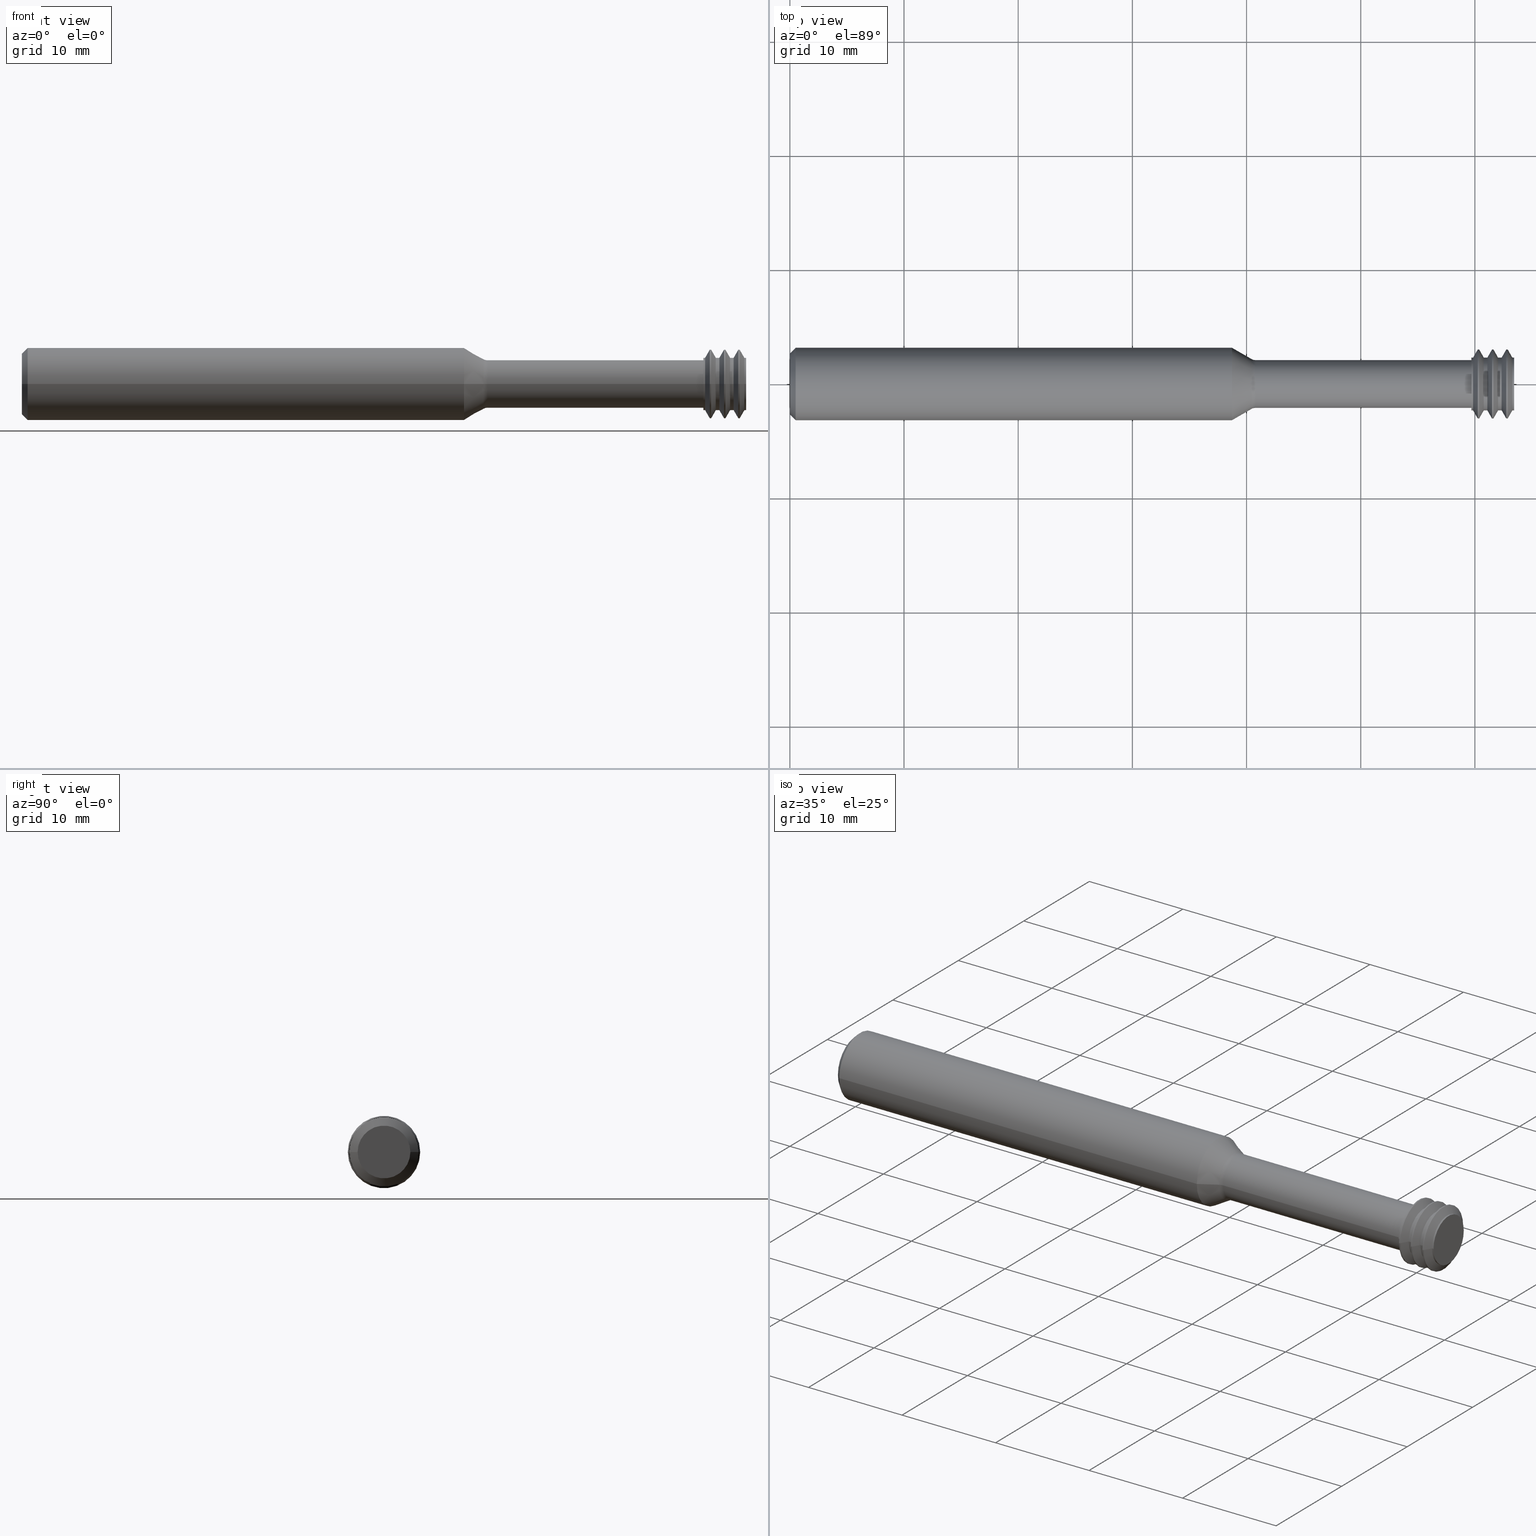
[diagram: canonical four-view strip — front | top / right | iso, engineering-drawing reading convention]
A machine part, canonical four-view strip (front | top / right | iso — engineering-drawing reading convention). The complete STEP part file that produces these views, byte-faithful:
ISO-10303-21;
HEADER;
FILE_DESCRIPTION (( 'STEP AP214' ),
    '1' );
FILE_NAME ('TMLR8-1-25MMEL.STEP',
    '2019-04-25T19:32:28',
    ( '' ),
    ( '' ),
    'SwSTEP 2.0',
    'SolidWorks 2018',
    '' );
FILE_SCHEMA (( 'AUTOMOTIVE_DESIGN' ));
ENDSEC;

DATA;
#1 = ORIENTED_EDGE ( 'NONE', *, *, #171, .T. ) ;
#2 = VECTOR ( 'NONE', #633, 39.37007874015748854 ) ;
#3 = PRESENTATION_STYLE_ASSIGNMENT (( #414 ) ) ;
#4 = VERTEX_POINT ( 'NONE', #1029 ) ;
#5 = CARTESIAN_POINT ( 'NONE',  ( 2.350000000000000089, -7.258347044323575049E-19, 0.0000000000000000000 ) ) ;
#6 = AXIS2_PLACEMENT_3D ( 'NONE', #350, #346, #345 ) ;
#7 = CARTESIAN_POINT ( 'NONE',  ( 2.475381500787402267, -0.1189999999999999669, 0.0000000000000000000 ) ) ;
#8 = DIRECTION ( 'NONE',  ( 0.0000000000000000000, -1.000000000000000000, 0.0000000000000000000 ) ) ;
#9 = AXIS2_PLACEMENT_3D ( 'NONE', #849, #838, #863 ) ;
#10 = DIRECTION ( 'NONE',  ( 0.0000000000000000000, -1.000000000000000000, 0.0000000000000000000 ) ) ;
#11 = DIRECTION ( 'NONE',  ( -1.000000000000000000, 2.239313081137374464E-19, -0.0000000000000000000 ) ) ;
#12 = ORIENTED_EDGE ( 'NONE', *, *, #741, .F. ) ;
#13 = EDGE_LOOP ( 'NONE', ( #370, #857, #12, #278 ) ) ;
#14 = VECTOR ( 'NONE', #234, 39.37007874015748143 ) ;
#15 = EDGE_CURVE ( 'NONE', #781, #4, #860, .T. ) ;
#16 = CARTESIAN_POINT ( 'NONE',  ( 2.442175201574803278, -7.464756178966507418E-19, 0.0000000000000000000 ) ) ;
#17 = STYLED_ITEM ( 'NONE', ( #703 ), #862 ) ;
#18 = VECTOR ( 'NONE', #832, 39.37007874015748854 ) ;
#19 = CARTESIAN_POINT ( 'NONE',  ( 1.592198729810778035, -5.561392747086332618E-19, 0.0000000000000000000 ) ) ;
#20 = EDGE_LOOP ( 'NONE', ( #705, #164, #238, #894 ) ) ;
#21 = EDGE_LOOP ( 'NONE', ( #878, #391, #558, #255 ) ) ;
#22 = VERTEX_POINT ( 'NONE', #26 ) ;
#23 = AXIS2_PLACEMENT_3D ( 'NONE', #834, #733, #756 ) ;
#24 = ORIENTED_EDGE ( 'NONE', *, *, #934, .T. ) ;
#25 = CARTESIAN_POINT ( 'NONE',  ( 1.604698729810777991, 0.0000000000000000000, 0.0000000000000000000 ) ) ;
#26 = CARTESIAN_POINT ( 'NONE',  ( 2.491387800000000485, 0.09093797018512160546, 1.113668941081666152E-17 ) ) ;
#27 = FACE_OUTER_BOUND ( 'NONE', #792, .T. ) ;
#28 = AXIS2_PLACEMENT_3D ( 'NONE', #54, #812, #596 ) ;
#29 = EDGE_CURVE ( 'NONE', #216, #781, #689, .T. ) ;
#30 = LINE ( 'NONE', #846, #575 ) ;
#31 = CIRCLE ( 'NONE', #157, 0.1189999999999999669 ) ;
#32 = DIRECTION ( 'NONE',  ( 0.0000000000000000000, -1.000000000000000000, 0.0000000000000000000 ) ) ;
#33 = ORIENTED_EDGE ( 'NONE', *, *, #670, .F. ) ;
#34 = ORIENTED_EDGE ( 'NONE', *, *, #961, .F. ) ;
#35 = EDGE_CURVE ( 'NONE', #539, #883, #833, .T. ) ;
#36 = ORIENTED_EDGE ( 'NONE', *, *, #299, .T. ) ;
#37 = TOROIDAL_SURFACE ( 'NONE', #577, 0.1075000000000000122, 0.02499999999999994241 ) ;
#38 = VECTOR ( 'NONE', #94, 39.37007874015748143 ) ;
#39 = PLANE ( 'NONE',  #264 ) ;
#40 = DIRECTION ( 'NONE',  ( 0.0000000000000000000, -1.000000000000000000, 0.0000000000000000000 ) ) ;
#41 = EDGE_CURVE ( 'NONE', #825, #909, #493, .T. ) ;
#42 = CARTESIAN_POINT ( 'NONE',  ( 2.547537800000000185, -7.258347044323575049E-19, 0.0000000000000000000 ) ) ;
#43 = AXIS2_PLACEMENT_3D ( 'NONE', #81, #11, #8 ) ;
#44 = DIRECTION ( 'NONE',  ( -1.000000000000000000, 0.0000000000000000000, -0.0000000000000000000 ) ) ;
#45 = DIRECTION ( 'NONE',  ( 0.4954586684324090440, 0.8686315144381903108, 0.0000000000000000000 ) ) ;
#46 = ORIENTED_EDGE ( 'NONE', *, *, #847, .F. ) ;
#47 = EDGE_CURVE ( 'NONE', #367, #910, #861, .T. ) ;
#48 = ORIENTED_EDGE ( 'NONE', *, *, #47, .F. ) ;
#49 = FACE_OUTER_BOUND ( 'NONE', #569, .T. ) ;
#50 = EDGE_CURVE ( 'NONE', #227, #685, #451, .T. ) ;
#51 = ORIENTED_EDGE ( 'NONE', *, *, #572, .F. ) ;
#52 = ORIENTED_EDGE ( 'NONE', *, *, #515, .F. ) ;
#53 = FACE_OUTER_BOUND ( 'NONE', #311, .T. ) ;
#54 = CARTESIAN_POINT ( 'NONE',  ( 0.0000000000000000000, 0.0000000000000000000, 0.0000000000000000000 ) ) ;
#55 = EDGE_CURVE ( 'NONE', #404, #216, #396, .T. ) ;
#56 = DIRECTION ( 'NONE',  ( -1.000000000000000000, 9.347444947714682107E-19, -0.0000000000000000000 ) ) ;
#57 = AXIS2_PLACEMENT_3D ( 'NONE', #510, #235, #319 ) ;
#58 = DIRECTION ( 'NONE',  ( 1.000000000000000000, -2.239313081137374464E-19, 0.0000000000000000000 ) ) ;
#59 = ORIENTED_EDGE ( 'NONE', *, *, #471, .F. ) ;
#60 =( LENGTH_UNIT ( ) NAMED_UNIT ( * ) SI_UNIT ( $, .METRE. ) );
#61 = CARTESIAN_POINT ( 'NONE',  ( 2.470481500787402140, 0.1189999999999999669, 0.0000000000000000000 ) ) ;
#62 = ORIENTED_EDGE ( 'NONE', *, *, #753, .T. ) ;
#63 = VERTEX_POINT ( 'NONE', #837 ) ;
#64 = ORIENTED_EDGE ( 'NONE', *, *, #130, .F. ) ;
#65 = ORIENTED_EDGE ( 'NONE', *, *, #286, .T. ) ;
#66 = EDGE_CURVE ( 'NONE', #883, #701, #305, .T. ) ;
#67 = CONICAL_SURFACE ( 'NONE', #209, 0.1189999999999999669, 1.052433538952578962 ) ;
#68 = AXIS2_PLACEMENT_3D ( 'NONE', #702, #58, #135 ) ;
#69 = CARTESIAN_POINT ( 'NONE',  ( 2.350000000000000089, 0.08250000000000004552, 1.010333609296566932E-17 ) ) ;
#70 = DIRECTION ( 'NONE',  ( -1.000000000000000000, 2.239313081137374464E-19, -0.0000000000000000000 ) ) ;
#71 = DIRECTION ( 'NONE',  ( -1.000000000000000000, 2.239313081137374464E-19, -0.0000000000000000000 ) ) ;
#72 = CARTESIAN_POINT ( 'NONE',  ( 1.592198729810778035, -5.561392747086332618E-19, 0.0000000000000000000 ) ) ;
#73 = DIRECTION ( 'NONE',  ( 0.0000000000000000000, -1.000000000000000000, 0.0000000000000000000 ) ) ;
#74 = ORIENTED_EDGE ( 'NONE', *, *, #1026, .T. ) ;
#75 = FACE_OUTER_BOUND ( 'NONE', #116, .T. ) ;
#76 = ORIENTED_EDGE ( 'NONE', *, *, #55, .T. ) ;
#77 = ORIENTED_EDGE ( 'NONE', *, *, #572, .T. ) ;
#78 = CARTESIAN_POINT ( 'NONE',  ( 2.442175201574803278, -7.464756178966507418E-19, 0.0000000000000000000 ) ) ;
#79 = CARTESIAN_POINT ( 'NONE',  ( 2.421268902362205377, 0.1189999999999999669, 0.0000000000000000000 ) ) ;
#80 = ADVANCED_FACE ( 'NONE', ( #152 ), #67, .T. ) ;
#81 = CARTESIAN_POINT ( 'NONE',  ( 1.524647648299458425, -5.410124726613057189E-19, 0.0000000000000000000 ) ) ;
#82 = DIRECTION ( 'NONE',  ( -1.000000000000000000, 2.239313081137374464E-19, -0.0000000000000000000 ) ) ;
#83 = EDGE_CURVE ( 'NONE', #532, #852, #84, .T. ) ;
#84 = CIRCLE ( 'NONE', #519, 0.1189999999999999669 ) ;
#85 = LINE ( 'NONE', #244, #260 ) ;
#86 = DIRECTION ( 'NONE',  ( 1.000000000000000000, -2.239313081137374464E-19, 0.0000000000000000000 ) ) ;
#87 = LINE ( 'NONE', #495, #256 ) ;
#88 = PRODUCT_DEFINITION_FORMATION_WITH_SPECIFIED_SOURCE ( 'ANY', '', #953, .NOT_KNOWN. ) ;
#89 = DIRECTION ( 'NONE',  ( 0.4954586684324090440, -0.8686315144381903108, 1.063766803795247741E-16 ) ) ;
#90 = TOROIDAL_SURFACE ( 'NONE', #271, 0.1075000000000000122, 0.02499999999999994241 ) ;
#91 = DIRECTION ( 'NONE',  ( -1.000000000000000000, 2.239313081137374464E-19, -0.0000000000000000000 ) ) ;
#92 = ORIENTED_EDGE ( 'NONE', *, *, #961, .T. ) ;
#93 = CARTESIAN_POINT ( 'NONE',  ( 2.392962603149606515, -7.354553763556201788E-19, 0.0000000000000000000 ) ) ;
#94 = DIRECTION ( 'NONE',  ( -1.000000000000000000, 2.239313081137374464E-19, -0.0000000000000000000 ) ) ;
#95 = ORIENTED_EDGE ( 'NONE', *, *, #413, .T. ) ;
#96 = DIRECTION ( 'NONE',  ( 0.0000000000000000000, -1.000000000000000000, 0.0000000000000000000 ) ) ;
#97 = DIRECTION ( 'NONE',  ( -1.000000000000000000, 2.239313081137374464E-19, -0.0000000000000000000 ) ) ;
#98 =( GEOMETRIC_REPRESENTATION_CONTEXT ( 3 ) GLOBAL_UNCERTAINTY_ASSIGNED_CONTEXT ( ( #326 ) ) GLOBAL_UNIT_ASSIGNED_CONTEXT ( ( #257, #158, #420 ) ) REPRESENTATION_CONTEXT ( 'NONE', 'WORKASPACE' ) );
#99 = AXIS2_PLACEMENT_3D ( 'NONE', #941, #468, #930 ) ;
#100 = VECTOR ( 'NONE', #608, 39.37007874015748854 ) ;
#101 = LINE ( 'NONE', #796, #652 ) ;
#102 = DIRECTION ( 'NONE',  ( -1.000000000000000000, 2.239313081137374464E-19, -0.0000000000000000000 ) ) ;
#103 = ORIENTED_EDGE ( 'NONE', *, *, #772, .F. ) ;
#104 = CARTESIAN_POINT ( 'NONE',  ( 2.491387800000000485, -7.574958594376810159E-19, 0.0000000000000000000 ) ) ;
#105 = VERTEX_POINT ( 'NONE', #688 ) ;
#106 = LINE ( 'NONE', #481, #2 ) ;
#107 = VECTOR ( 'NONE', #632, 39.37007874015748143 ) ;
#108 = DIRECTION ( 'NONE',  ( -1.000000000000000000, 9.347444947714682107E-19, -0.0000000000000000000 ) ) ;
#109 = CYLINDRICAL_SURFACE ( 'NONE', #482, 0.09093797018512160546 ) ;
#110 = DIRECTION ( 'NONE',  ( 1.000000000000000000, -2.239313081137374464E-19, 0.0000000000000000000 ) ) ;
#111 = VECTOR ( 'NONE', #89, 39.37007874015748854 ) ;
#112 = CARTESIAN_POINT ( 'NONE',  ( 2.547537800000000185, -0.1189999999999999808, 0.0000000000000000000 ) ) ;
#113 = CARTESIAN_POINT ( 'NONE',  ( 2.350000000000000089, -7.258347044323575049E-19, 0.0000000000000000000 ) ) ;
#114 = VERTEX_POINT ( 'NONE', #960 ) ;
#115 = LINE ( 'NONE', #931, #429 ) ;
#116 = EDGE_LOOP ( 'NONE', ( #76, #655, #128, #611 ) ) ;
#117 = ORIENTED_EDGE ( 'NONE', *, *, #303, .T. ) ;
#118 = LINE ( 'NONE', #923, #979 ) ;
#119 = CARTESIAN_POINT ( 'NONE',  ( 2.405262603149606715, -7.382097314454192249E-19, 0.0000000000000000000 ) ) ;
#120 = DIRECTION ( 'NONE',  ( 0.0000000000000000000, -1.000000000000000000, 0.0000000000000000000 ) ) ;
#121 = EDGE_CURVE ( 'NONE', #425, #227, #85, .T. ) ;
#122 = LINE ( 'NONE', #778, #691 ) ;
#123 = DIRECTION ( 'NONE',  ( -1.000000000000000000, 2.239313081137374464E-19, -0.0000000000000000000 ) ) ;
#124 = CARTESIAN_POINT ( 'NONE',  ( -2.347919765572537244E-20, -0.1048500000000000126, 1.406506848820735372E-17 ) ) ;
#125 = ORIENTED_EDGE ( 'NONE', *, *, #772, .T. ) ;
#126 = ORIENTED_EDGE ( 'NONE', *, *, #605, .F. ) ;
#127 = CARTESIAN_POINT ( 'NONE',  ( 2.356050004724409952, -7.271894899043888545E-19, 0.0000000000000000000 ) ) ;
#128 = ORIENTED_EDGE ( 'NONE', *, *, #520, .F. ) ;
#129 = FACE_OUTER_BOUND ( 'NONE', #487, .T. ) ;
#130 = EDGE_CURVE ( 'NONE', #293, #227, #122, .T. ) ;
#131 = DIRECTION ( 'NONE',  ( -0.4954586684323962209, -0.8686315144381975273, 0.0000000000000000000 ) ) ;
#132 = ORIENTED_EDGE ( 'NONE', *, *, #723, .T. ) ;
#133 = ORIENTED_EDGE ( 'NONE', *, *, #297, .T. ) ;
#134 = ORIENTED_EDGE ( 'NONE', *, *, #803, .T. ) ;
#135 = DIRECTION ( 'NONE',  ( 2.239313081137374464E-19, 1.000000000000000000, 0.0000000000000000000 ) ) ;
#136 = DIRECTION ( 'NONE',  ( -1.000000000000000000, 2.239313081137374464E-19, -0.0000000000000000000 ) ) ;
#137 = DIRECTION ( 'NONE',  ( 0.0000000000000000000, -1.000000000000000000, 0.0000000000000000000 ) ) ;
#138 = DIRECTION ( 'NONE',  ( 0.0000000000000000000, 1.000000000000000000, 0.0000000000000000000 ) ) ;
#139 = AXIS2_PLACEMENT_3D ( 'NONE', #292, #274, #40 ) ;
#140 = CARTESIAN_POINT ( 'NONE',  ( 2.392962603149606515, -0.09093797018512160546, 0.0000000000000000000 ) ) ;
#141 = DIRECTION ( 'NONE',  ( -1.000000000000000000, 2.239313081137374464E-19, -0.0000000000000000000 ) ) ;
#142 = CARTESIAN_POINT ( 'NONE',  ( 2.372056303937008614, -0.1189999999999999669, 1.457329690985349863E-17 ) ) ;
#143 = CARTESIAN_POINT ( 'NONE',  ( 2.421268902362205377, -7.417940429661563374E-19, 0.0000000000000000000 ) ) ;
#144 = ORIENTED_EDGE ( 'NONE', *, *, #995, .F. ) ;
#145 = CARTESIAN_POINT ( 'NONE',  ( 1.604698729810777991, 0.1075000000000000122, 1.316495309083404864E-17 ) ) ;
#146 = VERTEX_POINT ( 'NONE', #766 ) ;
#147 = DIRECTION ( 'NONE',  ( 0.0000000000000000000, 1.000000000000000000, 0.0000000000000000000 ) ) ;
#148 = DIRECTION ( 'NONE',  ( 0.0000000000000000000, -1.000000000000000000, 0.0000000000000000000 ) ) ;
#149 = ORIENTED_EDGE ( 'NONE', *, *, #471, .T. ) ;
#150 = CARTESIAN_POINT ( 'NONE',  ( 1.604698729810777991, -5.589384160600548992E-19, 0.0000000000000000000 ) ) ;
#151 = CARTESIAN_POINT ( 'NONE',  ( 2.470481500787402140, -7.528142845071868041E-19, 0.0000000000000000000 ) ) ;
#152 = FACE_OUTER_BOUND ( 'NONE', #501, .T. ) ;
#153 = APPLICATION_PROTOCOL_DEFINITION ( 'draft international standard', 'automotive_design', 1998, #446 ) ;
#154 = EDGE_CURVE ( 'NONE', #539, #457, #534, .T. ) ;
#155 = DIRECTION ( 'NONE',  ( -1.000000000000000000, 2.239313081137374464E-19, -0.0000000000000000000 ) ) ;
#156 = DIRECTION ( 'NONE',  ( -1.000000000000000000, 2.239313081137374464E-19, -0.0000000000000000000 ) ) ;
#157 = AXIS2_PLACEMENT_3D ( 'NONE', #151, #155, #576 ) ;
#158 =( NAMED_UNIT ( * ) PLANE_ANGLE_UNIT ( ) SI_UNIT ( $, .RADIAN. ) );
#159 = CARTESIAN_POINT ( 'NONE',  ( 2.475381500787402267, 0.1189999999999999669, 1.457329690985349555E-17 ) ) ;
#160 = DIRECTION ( 'NONE',  ( 0.0000000000000000000, -1.000000000000000000, 0.0000000000000000000 ) ) ;
#161 = ORIENTED_EDGE ( 'NONE', *, *, #361, .F. ) ;
#162 = ORIENTED_EDGE ( 'NONE', *, *, #777, .T. ) ;
#163 = DIRECTION ( 'NONE',  ( -1.000000000000000000, 2.239313081137374464E-19, -0.0000000000000000000 ) ) ;
#164 = ORIENTED_EDGE ( 'NONE', *, *, #605, .T. ) ;
#165 = CARTESIAN_POINT ( 'NONE',  ( 2.442175201574803278, -7.464756178966507418E-19, 0.0000000000000000000 ) ) ;
#166 = CIRCLE ( 'NONE', #1030, 0.1189999999999999669 ) ;
#167 = FACE_OUTER_BOUND ( 'NONE', #13, .T. ) ;
#168 = DIRECTION ( 'NONE',  ( 0.0000000000000000000, -1.000000000000000000, 0.0000000000000000000 ) ) ;
#169 = CARTESIAN_POINT ( 'NONE',  ( 0.02000000000000005940, -2.040747565273492847E-19, 0.0000000000000000000 ) ) ;
#170 = FACE_OUTER_BOUND ( 'NONE', #324, .T. ) ;
#171 = EDGE_CURVE ( 'NONE', #825, #663, #604, .T. ) ;
#172 = CYLINDRICAL_SURFACE ( 'NONE', #502, 0.09093797018512160546 ) ;
#173 = CIRCLE ( 'NONE', #177, 0.09093797018512160546 ) ;
#174 = ORIENTED_EDGE ( 'NONE', *, *, #977, .F. ) ;
#175 = ORIENTED_EDGE ( 'NONE', *, *, #362, .T. ) ;
#176 = ORIENTED_EDGE ( 'NONE', *, *, #990, .F. ) ;
#177 = AXIS2_PLACEMENT_3D ( 'NONE', #78, #411, #498 ) ;
#178 = EDGE_CURVE ( 'NONE', #951, #105, #573, .T. ) ;
#179 = CARTESIAN_POINT ( 'NONE',  ( 2.421268902362205377, -7.417940429661563374E-19, 0.0000000000000000000 ) ) ;
#180 = PRESENTATION_LAYER_ASSIGNMENT (  '', '', ( #447 ) ) ;
#181 = CYLINDRICAL_SURFACE ( 'NONE', #295, 0.1189999999999999808 ) ;
#182 = DIRECTION ( 'NONE',  ( -1.000000000000000000, 2.239313081137374464E-19, -0.0000000000000000000 ) ) ;
#183 = DIRECTION ( 'NONE',  ( 0.0000000000000000000, -1.000000000000000000, 0.0000000000000000000 ) ) ;
#184 = FACE_OUTER_BOUND ( 'NONE', #720, .T. ) ;
#185 = ORIENTED_EDGE ( 'NONE', *, *, #338, .F. ) ;
#186 = DIRECTION ( 'NONE',  ( 1.000000000000000000, -2.239313081137374464E-19, 0.0000000000000000000 ) ) ;
#187 = ADVANCED_FACE ( 'NONE', ( #167 ), #466, .T. ) ;
#188 = DIRECTION ( 'NONE',  ( 0.0000000000000000000, 1.000000000000000000, 0.0000000000000000000 ) ) ;
#189 = DIRECTION ( 'NONE',  ( -1.000000000000000000, 2.239313081137374464E-19, -0.0000000000000000000 ) ) ;
#190 = CONICAL_SURFACE ( 'NONE', #23, 0.09093797018512160546, 1.052433538952593617 ) ;
#191 = DIRECTION ( 'NONE',  ( -1.000000000000000000, 9.347444947714682107E-19, -0.0000000000000000000 ) ) ;
#192 = CARTESIAN_POINT ( 'NONE',  ( 2.350000000000000089, -7.258347044323575049E-19, 0.0000000000000000000 ) ) ;
#193 = ADVANCED_FACE ( 'NONE', ( #1022 ), #1017, .T. ) ;
#194 = AXIS2_PLACEMENT_3D ( 'NONE', #797, #794, #815 ) ;
#195 = CARTESIAN_POINT ( 'NONE',  ( 2.470481500787402140, -7.528142845071868041E-19, 0.0000000000000000000 ) ) ;
#196 = ADVANCED_FACE ( 'NONE', ( #53 ), #39, .F. ) ;
#197 = EDGE_CURVE ( 'NONE', #63, #430, #963, .T. ) ;
#198 = ADVANCED_FACE ( 'NONE', ( #823 ), #312, .T. ) ;
#199 = ORIENTED_EDGE ( 'NONE', *, *, #513, .F. ) ;
#200 = DIRECTION ( 'NONE',  ( -1.000000000000000000, 2.239313081137374464E-19, -0.0000000000000000000 ) ) ;
#201 = LINE ( 'NONE', #788, #587 ) ;
#202 = ORIENTED_EDGE ( 'NONE', *, *, #900, .T. ) ;
#203 = ADVANCED_FACE ( 'NONE', ( #625 ), #268, .F. ) ;
#204 = CARTESIAN_POINT ( 'NONE',  ( 2.547537800000000185, -7.258347044323575049E-19, 0.0000000000000000000 ) ) ;
#205 = ADVANCED_FACE ( 'NONE', ( #907 ), #873, .T. ) ;
#206 = DIRECTION ( 'NONE',  ( 0.0000000000000000000, -1.000000000000000000, 0.0000000000000000000 ) ) ;
#207 = ADVANCED_FACE ( 'NONE', ( #748 ), #997, .T. ) ;
#208 = PRODUCT_DEFINITION_SHAPE ( 'NONE', 'NONE',  #582 ) ;
#209 = AXIS2_PLACEMENT_3D ( 'NONE', #259, #556, #905 ) ;
#210 = CARTESIAN_POINT ( 'NONE',  ( 2.426168902362205504, 0.1189999999999999669, 1.457329690985349863E-17 ) ) ;
#211 = DIRECTION ( 'NONE',  ( -2.239313081137374464E-19, -1.000000000000000000, 0.0000000000000000000 ) ) ;
#212 = CIRCLE ( 'NONE', #516, 0.09093797018512160546 ) ;
#213 = DIRECTION ( 'NONE',  ( -1.000000000000000000, 2.239313081137374464E-19, -0.0000000000000000000 ) ) ;
#214 = AXIS2_PLACEMENT_3D ( 'NONE', #358, #356, #470 ) ;
#215 = ADVANCED_FACE ( 'NONE', ( #75 ), #592, .T. ) ;
#216 = VERTEX_POINT ( 'NONE', #378 ) ;
#217 = DIRECTION ( 'NONE',  ( -1.000000000000000000, 2.239313081137374464E-19, -0.0000000000000000000 ) ) ;
#218 = ADVANCED_FACE ( 'NONE', ( #388 ), #181, .T. ) ;
#219 = CARTESIAN_POINT ( 'NONE',  ( 0.0000000000000000000, -1.995961303650745011E-19, 0.0000000000000000000 ) ) ;
#220 = ORIENTED_EDGE ( 'NONE', *, *, #892, .T. ) ;
#221 = ORIENTED_EDGE ( 'NONE', *, *, #369, .T. ) ;
#222 = SURFACE_STYLE_FILL_AREA ( #327 ) ;
#223 = CARTESIAN_POINT ( 'NONE',  ( 2.251574803149606119, -7.037942213502966678E-19, 0.0000000000000000000 ) ) ;
#224 = EDGE_LOOP ( 'NONE', ( #282, #315, #65, #557 ) ) ;
#225 = ADVANCED_FACE ( 'NONE', ( #1002 ), #904, .T. ) ;
#226 = CARTESIAN_POINT ( 'NONE',  ( 2.350000000000000089, 0.09093797018512160546, 1.113668941081666152E-17 ) ) ;
#227 = VERTEX_POINT ( 'NONE', #424 ) ;
#228 = ADVANCED_FACE ( 'NONE', ( #875 ), #938, .T. ) ;
#229 = CARTESIAN_POINT ( 'NONE',  ( 2.350000000000000089, 0.08250000000000004552, 1.010333609296566932E-17 ) ) ;
#230 = DIMENSIONAL_EXPONENTS ( 1.000000000000000000, 0.0000000000000000000, 0.0000000000000000000, 0.0000000000000000000, 0.0000000000000000000, 0.0000000000000000000, 0.0000000000000000000 ) ;
#231 = VECTOR ( 'NONE', #602, 39.37007874015748143 ) ;
#232 = FACE_OUTER_BOUND ( 'NONE', #442, .T. ) ;
#233 =( GEOMETRIC_REPRESENTATION_CONTEXT ( 3 ) GLOBAL_UNCERTAINTY_ASSIGNED_CONTEXT ( ( #363 ) ) GLOBAL_UNIT_ASSIGNED_CONTEXT ( ( #612, #615, #607 ) ) REPRESENTATION_CONTEXT ( 'NONE', 'WORKASPACE' ) );
#234 = DIRECTION ( 'NONE',  ( -1.000000000000000000, 2.239313081137374464E-19, -0.0000000000000000000 ) ) ;
#235 = DIRECTION ( 'NONE',  ( 1.000000000000000000, -2.239313081137374464E-19, 0.0000000000000000000 ) ) ;
#236 = AXIS2_PLACEMENT_3D ( 'NONE', #330, #359, #709 ) ;
#237 = LINE ( 'NONE', #229, #14 ) ;
#238 = ORIENTED_EDGE ( 'NONE', *, *, #995, .T. ) ;
#239 = EDGE_CURVE ( 'NONE', #383, #22, #522, .T. ) ;
#240 = ORIENTED_EDGE ( 'NONE', *, *, #900, .F. ) ;
#241 = ORIENTED_EDGE ( 'NONE', *, *, #47, .T. ) ;
#242 = AXIS2_PLACEMENT_3D ( 'NONE', #658, #635, #628 ) ;
#243 = FACE_OUTER_BOUND ( 'NONE', #298, .T. ) ;
#244 = CARTESIAN_POINT ( 'NONE',  ( 0.02000000000000005940, 0.1248500000000000026, 0.0000000000000000000 ) ) ;
#245 = AXIS2_PLACEMENT_3D ( 'NONE', #104, #102, #96 ) ;
#246 = AXIS2_PLACEMENT_3D ( 'NONE', #195, #86, #147 ) ;
#247 = ADVANCED_FACE ( 'NONE', ( #914 ), #251, .T. ) ;
#248 = EDGE_CURVE ( 'NONE', #430, #63, #321, .T. ) ;
#249 = CONICAL_SURFACE ( 'NONE', #9, 0.1189999999999999669, 1.052433538952578962 ) ;
#250 = EDGE_CURVE ( 'NONE', #457, #701, #212, .T. ) ;
#251 = CYLINDRICAL_SURFACE ( 'NONE', #585, 0.1248500000000000026 ) ;
#252 = CARTESIAN_POINT ( 'NONE',  ( 2.405262603149606715, -0.09093797018512160546, 1.285499316033507930E-17 ) ) ;
#253 = ADVANCED_FACE ( 'NONE', ( #728 ), #90, .F. ) ;
#254 = ORIENTED_EDGE ( 'NONE', *, *, #893, .F. ) ;
#255 = ORIENTED_EDGE ( 'NONE', *, *, #801, .F. ) ;
#256 = VECTOR ( 'NONE', #694, 39.37007874015748143 ) ;
#257 =( CONVERSION_BASED_UNIT ( 'INCH', #283 ) LENGTH_UNIT ( ) NAMED_UNIT ( #730 ) );
#258 = ADVANCED_FACE ( 'NONE', ( #277 ), #754, .T. ) ;
#259 = CARTESIAN_POINT ( 'NONE',  ( 2.470481500787402140, -7.528142845071868041E-19, 0.0000000000000000000 ) ) ;
#260 = VECTOR ( 'NONE', #492, 39.37007874015748854 ) ;
#261 = FACE_BOUND ( 'NONE', #1018, .T. ) ;
#262 = ADVANCED_FACE ( 'NONE', ( #876 ), #1031, .T. ) ;
#263 = CIRCLE ( 'NONE', #619, 0.1189999999999999669 ) ;
#264 = AXIS2_PLACEMENT_3D ( 'NONE', #342, #44, #461 ) ;
#265 = EDGE_CURVE ( 'NONE', #701, #419, #973, .T. ) ;
#266 = ADVANCED_FACE ( 'NONE', ( #371 ), #249, .T. ) ;
#267 = ORIENTED_EDGE ( 'NONE', *, *, #847, .T. ) ;
#268 = PLANE ( 'NONE',  #68 ) ;
#269 = EDGE_LOOP ( 'NONE', ( #524, #328, #581, #526 ) ) ;
#270 = ORIENTED_EDGE ( 'NONE', *, *, #803, .F. ) ;
#271 = AXIS2_PLACEMENT_3D ( 'NONE', #483, #1000, #950 ) ;
#272 = DIRECTION ( 'NONE',  ( 0.0000000000000000000, -1.000000000000000000, 0.0000000000000000000 ) ) ;
#273 = ADVANCED_FACE ( 'NONE', ( #798 ), #437, .T. ) ;
#274 = DIRECTION ( 'NONE',  ( -1.000000000000000000, 2.239313081137374464E-19, -0.0000000000000000000 ) ) ;
#275 = AXIS2_PLACEMENT_3D ( 'NONE', #16, #1010, #998 ) ;
#276 = ADVANCED_FACE ( 'NONE', ( #49 ), #109, .T. ) ;
#277 = FACE_OUTER_BOUND ( 'NONE', #269, .T. ) ;
#278 = ORIENTED_EDGE ( 'NONE', *, *, #41, .F. ) ;
#279 = ADVANCED_FACE ( 'NONE', ( #351 ), #752, .T. ) ;
#280 = ORIENTED_EDGE ( 'NONE', *, *, #955, .T. ) ;
#281 = CIRCLE ( 'NONE', #824, 0.09093797018512160546 ) ;
#282 = ORIENTED_EDGE ( 'NONE', *, *, #459, .F. ) ;
#283 = LENGTH_MEASURE_WITH_UNIT ( LENGTH_MEASURE( 0.02539999999999999897 ), #60 );
#284 = AXIS2_PLACEMENT_3D ( 'NONE', #787, #497, #393 ) ;
#285 = VERTEX_POINT ( 'NONE', #782 ) ;
#286 = EDGE_CURVE ( 'NONE', #852, #63, #201, .T. ) ;
#287 = ADVANCED_FACE ( 'NONE', ( #27 ), #716, .T. ) ;
#288 = EDGE_CURVE ( 'NONE', #285, #891, #335, .T. ) ;
#289 = FACE_OUTER_BOUND ( 'NONE', #636, .T. ) ;
#290 = ADVANCED_FACE ( 'NONE', ( #450 ), #929, .T. ) ;
#291 = AXIS2_PLACEMENT_3D ( 'NONE', #119, #136, #168 ) ;
#292 = CARTESIAN_POINT ( 'NONE',  ( 1.592198729810778035, -5.561392747086332618E-19, 0.0000000000000000000 ) ) ;
#293 = VERTEX_POINT ( 'NONE', #546 ) ;
#294 = CIRCLE ( 'NONE', #310, 0.09093797018512160546 ) ;
#295 = AXIS2_PLACEMENT_3D ( 'NONE', #550, #108, #272 ) ;
#296 = ORIENTED_EDGE ( 'NONE', *, *, #549, .F. ) ;
#297 = EDGE_CURVE ( 'NONE', #114, #146, #263, .T. ) ;
#298 = EDGE_LOOP ( 'NONE', ( #126, #389, #221, #133 ) ) ;
#299 = EDGE_CURVE ( 'NONE', #105, #320, #606, .T. ) ;
#300 = SURFACE_SIDE_STYLE ('',( #222 ) ) ;
#301 = CARTESIAN_POINT ( 'NONE',  ( 1.592198729810778035, -0.08584936490538914999, 0.0000000000000000000 ) ) ;
#302 = DIRECTION ( 'NONE',  ( -0.8660254037844380415, -0.5000000000000009992, 0.0000000000000000000 ) ) ;
#303 = EDGE_CURVE ( 'NONE', #601, #685, #903, .T. ) ;
#304 = DIRECTION ( 'NONE',  ( 0.0000000000000000000, -1.000000000000000000, 0.0000000000000000000 ) ) ;
#305 = LINE ( 'NONE', #617, #231 ) ;
#306 = DIRECTION ( 'NONE',  ( -1.000000000000000000, 2.239313081137374464E-19, -0.0000000000000000000 ) ) ;
#307 = CIRCLE ( 'NONE', #291, 0.09093797018512160546 ) ;
#308 = AXIS2_PLACEMENT_3D ( 'NONE', #538, #618, #621 ) ;
#309 = CARTESIAN_POINT ( 'NONE',  ( 2.426168902362205504, -7.428913063759137256E-19, 0.0000000000000000000 ) ) ;
#310 = AXIS2_PLACEMENT_3D ( 'NONE', #192, #189, #188 ) ;
#311 = EDGE_LOOP ( 'NONE', ( #347, #325 ) ) ;
#312 = CONICAL_SURFACE ( 'NONE', #840, 0.1189999999999999669, 1.052433538952578962 ) ;
#313 = EDGE_LOOP ( 'NONE', ( #240, #431, #525, #460 ) ) ;
#314 = UNCERTAINTY_MEASURE_WITH_UNIT (LENGTH_MEASURE( 1.000000000000000082E-05 ), #770, 'distance_accuracy_value', 'NONE');
#315 = ORIENTED_EDGE ( 'NONE', *, *, #83, .T. ) ;
#316 = EDGE_CURVE ( 'NONE', #285, #383, #87, .T. ) ;
#317 = VECTOR ( 'NONE', #712, 39.37007874015748143 ) ;
#318 = DIMENSIONAL_EXPONENTS ( 1.000000000000000000, 0.0000000000000000000, 0.0000000000000000000, 0.0000000000000000000, 0.0000000000000000000, 0.0000000000000000000, 0.0000000000000000000 ) ;
#319 = DIRECTION ( 'NONE',  ( 0.0000000000000000000, 1.000000000000000000, 0.0000000000000000000 ) ) ;
#320 = VERTEX_POINT ( 'NONE', #785 ) ;
#321 = CIRCLE ( 'NONE', #630, 0.1189999999999999669 ) ;
#322 = PRESENTATION_LAYER_ASSIGNMENT (  '', '', ( #17 ) ) ;
#323 = ORIENTED_EDGE ( 'NONE', *, *, #286, .F. ) ;
#324 = EDGE_LOOP ( 'NONE', ( #866, #906, #936, #679 ) ) ;
#325 = ORIENTED_EDGE ( 'NONE', *, *, #402, .T. ) ;
#326 = UNCERTAINTY_MEASURE_WITH_UNIT (LENGTH_MEASURE( 1.000000000000000082E-05 ), #257, 'distance_accuracy_value', 'NONE');
#327 = FILL_AREA_STYLE ('',( #418 ) ) ;
#328 = ORIENTED_EDGE ( 'NONE', *, *, #808, .T. ) ;
#329 = DIRECTION ( 'NONE',  ( -1.000000000000000000, 9.347444947714682107E-19, -0.0000000000000000000 ) ) ;
#330 = CARTESIAN_POINT ( 'NONE',  ( 2.202362204724409800, -6.927739798092663937E-19, 0.0000000000000000000 ) ) ;
#331 = DIRECTION ( 'NONE',  ( 2.239313081137374464E-19, 1.000000000000000000, 0.0000000000000000000 ) ) ;
#332 = FACE_OUTER_BOUND ( 'NONE', #740, .T. ) ;
#333 = PRODUCT_RELATED_PRODUCT_CATEGORY ( 'part', '', ( #953 ) ) ;
#334 = CIRCLE ( 'NONE', #478, 0.09093797018512160546 ) ;
#335 = CIRCLE ( 'NONE', #817, 0.09093797018512160546 ) ;
#336 = EDGE_LOOP ( 'NONE', ( #822, #651, #898, #845 ) ) ;
#337 = ORIENTED_EDGE ( 'NONE', *, *, #777, .F. ) ;
#338 = EDGE_CURVE ( 'NONE', #910, #909, #464, .T. ) ;
#339 = CYLINDRICAL_SURFACE ( 'NONE', #284, 0.1189999999999999808 ) ;
#340 = CARTESIAN_POINT ( 'NONE',  ( 2.350000000000000089, -5.262385740672830520E-19, 0.0000000000000000000 ) ) ;
#341 = AXIS2_PLACEMENT_3D ( 'NONE', #407, #400, #397 ) ;
#342 = CARTESIAN_POINT ( 'NONE',  ( 2.497537800000000363, 0.2500000000000000000, -0.2999999999999999889 ) ) ;
#343 = EDGE_CURVE ( 'NONE', #419, #707, #511, .T. ) ;
#344 = AXIS2_PLACEMENT_3D ( 'NONE', #145, #537, #512 ) ;
#345 = DIRECTION ( 'NONE',  ( 0.0000000000000000000, 1.000000000000000000, 0.0000000000000000000 ) ) ;
#346 = DIRECTION ( 'NONE',  ( 1.000000000000000000, -2.239313081137374464E-19, 0.0000000000000000000 ) ) ;
#347 = ORIENTED_EDGE ( 'NONE', *, *, #288, .T. ) ;
#348 = ADVANCED_FACE ( 'NONE', ( #896 ), #764, .T. ) ;
#349 = VERTEX_POINT ( 'NONE', #528 ) ;
#350 = CARTESIAN_POINT ( 'NONE',  ( 2.350000000000000089, -7.258347044323575049E-19, 0.0000000000000000000 ) ) ;
#351 = FACE_OUTER_BOUND ( 'NONE', #839, .T. ) ;
#352 = CARTESIAN_POINT ( 'NONE',  ( 2.392962603149606515, -0.09093797018512160546, 0.0000000000000000000 ) ) ;
#353 = LINE ( 'NONE', #112, #614 ) ;
#354 = LENGTH_MEASURE_WITH_UNIT ( LENGTH_MEASURE( 0.02539999999999999897 ), #765 );
#355 = CARTESIAN_POINT ( 'NONE',  ( 1.604698729810777991, -5.589384160600548992E-19, 0.0000000000000000000 ) ) ;
#356 = DIRECTION ( 'NONE',  ( -1.000000000000000000, 2.239313081137374464E-19, -0.0000000000000000000 ) ) ;
#357 = VECTOR ( 'NONE', #943, 39.37007874015748143 ) ;
#358 = CARTESIAN_POINT ( 'NONE',  ( 2.376956303937008741, -7.318710648348832589E-19, 0.0000000000000000000 ) ) ;
#359 = DIRECTION ( 'NONE',  ( -1.000000000000000000, 2.239313081137374464E-19, -0.0000000000000000000 ) ) ;
#360 = DIRECTION ( 'NONE',  ( -1.000000000000000000, 9.347444947714682107E-19, -0.0000000000000000000 ) ) ;
#361 = EDGE_CURVE ( 'NONE', #951, #775, #850, .T. ) ;
#362 = EDGE_CURVE ( 'NONE', #293, #426, #591, .T. ) ;
#363 = UNCERTAINTY_MEASURE_WITH_UNIT (LENGTH_MEASURE( 1.000000000000000082E-05 ), #612, 'distance_accuracy_value', 'NONE');
#364 = LINE ( 'NONE', #462, #887 ) ;
#365 = CARTESIAN_POINT ( 'NONE',  ( 0.02000000000000005940, -2.040747565273492847E-19, 0.0000000000000000000 ) ) ;
#366 = AXIS2_PLACEMENT_3D ( 'NONE', #365, #415, #500 ) ;
#367 = VERTEX_POINT ( 'NONE', #530 ) ;
#368 = EDGE_LOOP ( 'NONE', ( #474, #746, #555, #586 ) ) ;
#369 = EDGE_CURVE ( 'NONE', #216, #114, #364, .T. ) ;
#370 = ORIENTED_EDGE ( 'NONE', *, *, #438, .F. ) ;
#371 = FACE_OUTER_BOUND ( 'NONE', #20, .T. ) ;
#372 = CIRCLE ( 'NONE', #571, 0.08250000000000007327 ) ;
#373 = CARTESIAN_POINT ( 'NONE',  ( 2.547537800000000185, 0.1189999999999999808, 1.457329690985349863E-17 ) ) ;
#374 = FACE_OUTER_BOUND ( 'NONE', #509, .T. ) ;
#375 = DIRECTION ( 'NONE',  ( -1.000000000000000000, 2.239313081137374464E-19, -0.0000000000000000000 ) ) ;
#376 = AXIS2_PLACEMENT_3D ( 'NONE', #620, #653, #747 ) ;
#377 = CARTESIAN_POINT ( 'NONE',  ( 2.421268902362205377, 0.1189999999999999669, 1.457329690985349863E-17 ) ) ;
#378 = CARTESIAN_POINT ( 'NONE',  ( 2.356050004724409952, 0.09093797018512160546, 1.113668941081666152E-17 ) ) ;
#379 = FACE_OUTER_BOUND ( 'NONE', #499, .T. ) ;
#380 = CARTESIAN_POINT ( 'NONE',  ( 2.376956303937008741, 0.1189999999999999669, 1.457329690985349555E-17 ) ) ;
#381 = ORIENTED_EDGE ( 'NONE', *, *, #893, .T. ) ;
#382 = EDGE_LOOP ( 'NONE', ( #855, #473, #978, #804 ) ) ;
#383 = VERTEX_POINT ( 'NONE', #423 ) ;
#384 = DIRECTION ( 'NONE',  ( -1.000000000000000000, 2.239313081137374464E-19, -0.0000000000000000000 ) ) ;
#385 = CARTESIAN_POINT ( 'NONE',  ( 2.376956303937008741, -0.1189999999999999669, 0.0000000000000000000 ) ) ;
#386 = DIRECTION ( 'NONE',  ( -1.000000000000000000, 2.239313081137374464E-19, -0.0000000000000000000 ) ) ;
#387 = DIRECTION ( 'NONE',  ( -1.000000000000000000, 9.347444947714682107E-19, -0.0000000000000000000 ) ) ;
#388 = FACE_OUTER_BOUND ( 'NONE', #224, .T. ) ;
#389 = ORIENTED_EDGE ( 'NONE', *, *, #713, .F. ) ;
#390 = ORIENTED_EDGE ( 'NONE', *, *, #197, .T. ) ;
#391 = ORIENTED_EDGE ( 'NONE', *, *, #265, .T. ) ;
#392 = CARTESIAN_POINT ( 'NONE',  ( 2.491387800000000485, -7.574958594376810159E-19, 0.0000000000000000000 ) ) ;
#393 = DIRECTION ( 'NONE',  ( 0.0000000000000000000, -1.000000000000000000, 0.0000000000000000000 ) ) ;
#394 = CYLINDRICAL_SURFACE ( 'NONE', #399, 0.09093797018512160546 ) ;
#395 = AXIS2_PLACEMENT_3D ( 'NONE', #204, #678, #912 ) ;
#396 = CIRCLE ( 'NONE', #242, 0.09093797018512160546 ) ;
#397 = DIRECTION ( 'NONE',  ( 0.0000000000000000000, 0.0000000000000000000, 1.000000000000000000 ) ) ;
#398 = AXIS2_PLACEMENT_3D ( 'NONE', #454, #449, #448 ) ;
#399 = AXIS2_PLACEMENT_3D ( 'NONE', #401, #384, #634 ) ;
#400 = DIRECTION ( 'NONE',  ( 1.000000000000000000, 0.0000000000000000000, 0.0000000000000000000 ) ) ;
#401 = CARTESIAN_POINT ( 'NONE',  ( 2.300787401574803326, -7.148144628913271345E-19, 0.0000000000000000000 ) ) ;
#402 = EDGE_CURVE ( 'NONE', #891, #285, #518, .T. ) ;
#403 = DIRECTION ( 'NONE',  ( 0.0000000000000000000, -1.000000000000000000, 0.0000000000000000000 ) ) ;
#404 = VERTEX_POINT ( 'NONE', #422 ) ;
#405 = EDGE_CURVE ( 'NONE', #707, #146, #480, .T. ) ;
#406 = VECTOR ( 'NONE', #945, 39.37007874015748854 ) ;
#407 = CARTESIAN_POINT ( 'NONE',  ( 2.497537800000000363, -7.588730369825805390E-19, 0.0000000000000000000 ) ) ;
#408 = PLANE ( 'NONE',  #714 ) ;
#409 =( LENGTH_UNIT ( ) NAMED_UNIT ( * ) SI_UNIT ( $, .METRE. ) );
#410 = CARTESIAN_POINT ( 'NONE',  ( 2.347919765572537244E-20, 0.1048500000000000126, 0.0000000000000000000 ) ) ;
#411 = DIRECTION ( 'NONE',  ( -1.000000000000000000, 2.239313081137374464E-19, -0.0000000000000000000 ) ) ;
#412 = CARTESIAN_POINT ( 'NONE',  ( 2.475381500787402267, -7.539115479169440960E-19, 0.0000000000000000000 ) ) ;
#413 = EDGE_CURVE ( 'NONE', #707, #419, #494, .T. ) ;
#414 = SURFACE_STYLE_USAGE ( .BOTH. , #300 ) ;
#415 = DIRECTION ( 'NONE',  ( 1.000000000000000000, -2.239313081137374464E-19, 0.0000000000000000000 ) ) ;
#416 = AXIS2_PLACEMENT_3D ( 'NONE', #456, #360, #899 ) ;
#417 = ORIENTED_EDGE ( 'NONE', *, *, #811, .F. ) ;
#418 = FILL_AREA_STYLE_COLOUR ( '', #458 ) ;
#419 = VERTEX_POINT ( 'NONE', #380 ) ;
#420 =( NAMED_UNIT ( * ) SI_UNIT ( $, .STERADIAN. ) SOLID_ANGLE_UNIT ( ) );
#421 = VECTOR ( 'NONE', #387, 39.37007874015748143 ) ;
#422 = CARTESIAN_POINT ( 'NONE',  ( 2.356050004724409952, -0.09093797018512160546, 0.0000000000000000000 ) ) ;
#423 = CARTESIAN_POINT ( 'NONE',  ( 2.491387800000000485, -0.09093797018512160546, 0.0000000000000000000 ) ) ;
#424 = CARTESIAN_POINT ( 'NONE',  ( 0.02000000000000005940, 0.1248500000000000026, 0.0000000000000000000 ) ) ;
#425 = VERTEX_POINT ( 'NONE', #410 ) ;
#426 = VERTEX_POINT ( 'NONE', #540 ) ;
#427 = ORIENTED_EDGE ( 'NONE', *, *, #760, .F. ) ;
#428 = CARTESIAN_POINT ( 'NONE',  ( 2.497537800000000363, -7.588730369825805390E-19, 0.0000000000000000000 ) ) ;
#429 = VECTOR ( 'NONE', #920, 39.37007874015748854 ) ;
#430 = VERTEX_POINT ( 'NONE', #377 ) ;
#431 = ORIENTED_EDGE ( 'NONE', *, *, #799, .F. ) ;
#432 = DIRECTION ( 'NONE',  ( 0.0000000000000000000, -1.000000000000000000, 0.0000000000000000000 ) ) ;
#433 = DIRECTION ( 'NONE',  ( 0.4954586684324090440, 0.8686315144381903108, 0.0000000000000000000 ) ) ;
#434 = ORIENTED_EDGE ( 'NONE', *, *, #520, .T. ) ;
#435 = CARTESIAN_POINT ( 'NONE',  ( 2.547537800000000185, -0.1189999999999999808, 0.0000000000000000000 ) ) ;
#436 = CLOSED_SHELL ( 'NONE', ( #187, #676, #654, #247, #505, #266, #215, #279, #205, #290, #262, #962, #228, #699, #273, #718, #80, #672, #218, #613, #276, #864, #196, #287, #348, #193, #198, #207, #258, #692, #744, #851, #203, #225, #695, #662, #253, #721, #780 ) ) ;
#437 = CONICAL_SURFACE ( 'NONE', #275, 0.09093797018512160546, 1.052433538952593617 ) ;
#438 = EDGE_CURVE ( 'NONE', #663, #825, #693, .T. ) ;
#439 = AXIS2_PLACEMENT_3D ( 'NONE', #647, #667, #668 ) ;
#440 = DIRECTION ( 'NONE',  ( 1.000000000000000000, 0.0000000000000000000, 0.0000000000000000000 ) ) ;
#441 = AXIS2_PLACEMENT_3D ( 'NONE', #940, #921, #1025 ) ;
#442 = EDGE_LOOP ( 'NONE', ( #1008, #980, #597, #323 ) ) ;
#443 = CYLINDRICAL_SURFACE ( 'NONE', #590, 0.1189999999999999808 ) ;
#444 = ORIENTED_EDGE ( 'NONE', *, *, #865, .F. ) ;
#445 = ORIENTED_EDGE ( 'NONE', *, *, #248, .T. ) ;
#446 = APPLICATION_CONTEXT ( 'automotive_design' ) ;
#447 = STYLED_ITEM ( 'NONE', ( #3 ), #944 ) ;
#448 = DIRECTION ( 'NONE',  ( 0.0000000000000000000, -1.000000000000000000, 0.0000000000000000000 ) ) ;
#449 = DIRECTION ( 'NONE',  ( -1.000000000000000000, 2.239313081137374464E-19, -0.0000000000000000000 ) ) ;
#450 = FACE_OUTER_BOUND ( 'NONE', #368, .T. ) ;
#451 = CIRCLE ( 'NONE', #1004, 0.1248500000000000026 ) ;
#452 = ORIENTED_EDGE ( 'NONE', *, *, #316, .T. ) ;
#453 = AXIS2_PLACEMENT_3D ( 'NONE', #355, #217, #680 ) ;
#454 = CARTESIAN_POINT ( 'NONE',  ( 1.524647648299458425, -5.410124726613057189E-19, 0.0000000000000000000 ) ) ;
#455 = ORIENTED_EDGE ( 'NONE', *, *, #239, .T. ) ;
#456 = CARTESIAN_POINT ( 'NONE',  ( 2.547537800000000185, -7.258347044323575049E-19, 0.0000000000000000000 ) ) ;
#457 = VERTEX_POINT ( 'NONE', #352 ) ;
#458 = COLOUR_RGB ( '',0.7529411764705882248, 0.7529411764705882248, 0.7529411764705882248 ) ;
#459 = EDGE_CURVE ( 'NONE', #532, #430, #958, .T. ) ;
#460 = ORIENTED_EDGE ( 'NONE', *, *, #741, .T. ) ;
#461 = DIRECTION ( 'NONE',  ( -0.0000000000000000000, 0.0000000000000000000, 1.000000000000000000 ) ) ;
#462 = CARTESIAN_POINT ( 'NONE',  ( 2.372056303937008614, 0.1189999999999999669, 0.0000000000000000000 ) ) ;
#463 = ORIENTED_EDGE ( 'NONE', *, *, #934, .F. ) ;
#464 = CIRCLE ( 'NONE', #805, 0.02499999999999986955 ) ;
#465 = CARTESIAN_POINT ( 'NONE',  ( 2.350000000000000089, -7.258347044323575049E-19, 0.0000000000000000000 ) ) ;
#466 = CYLINDRICAL_SURFACE ( 'NONE', #622, 0.08250000000000004552 ) ;
#467 = DIRECTION ( 'NONE',  ( 0.0000000000000000000, 0.0000000000000000000, 1.000000000000000000 ) ) ;
#468 = DIRECTION ( 'NONE',  ( -1.000000000000000000, 2.239313081137374464E-19, -0.0000000000000000000 ) ) ;
#469 = AXIS2_PLACEMENT_3D ( 'NONE', #392, #375, #403 ) ;
#470 = DIRECTION ( 'NONE',  ( 0.0000000000000000000, -1.000000000000000000, 0.0000000000000000000 ) ) ;
#471 = EDGE_CURVE ( 'NONE', #883, #539, #307, .T. ) ;
#472 = ORIENTED_EDGE ( 'NONE', *, *, #937, .T. ) ;
#473 = ORIENTED_EDGE ( 'NONE', *, *, #723, .F. ) ;
#474 = ORIENTED_EDGE ( 'NONE', *, *, #35, .T. ) ;
#475 = ORIENTED_EDGE ( 'NONE', *, *, #760, .T. ) ;
#476 = DIRECTION ( 'NONE',  ( 0.0000000000000000000, -1.000000000000000000, 0.0000000000000000000 ) ) ;
#477 = CYLINDRICAL_SURFACE ( 'NONE', #901, 0.08250000000000004552 ) ;
#478 = AXIS2_PLACEMENT_3D ( 'NONE', #127, #123, #120 ) ;
#479 = CIRCLE ( 'NONE', #99, 0.1048500000000000126 ) ;
#480 = LINE ( 'NONE', #435, #421 ) ;
#481 = CARTESIAN_POINT ( 'NONE',  ( 2.421268902362205377, -0.1189999999999999669, 1.457329690985349863E-17 ) ) ;
#482 = AXIS2_PLACEMENT_3D ( 'NONE', #827, #820, #975 ) ;
#483 = CARTESIAN_POINT ( 'NONE',  ( 1.604698729810777991, 0.0000000000000000000, 0.0000000000000000000 ) ) ;
#484 = ORIENTED_EDGE ( 'NONE', *, *, #955, .F. ) ;
#485 = ORIENTED_EDGE ( 'NONE', *, *, #299, .F. ) ;
#486 = CARTESIAN_POINT ( 'NONE',  ( 2.491387800000000485, -7.574958594376810159E-19, 0.0000000000000000000 ) ) ;
#487 = EDGE_LOOP ( 'NONE', ( #475, #776, #484, #463 ) ) ;
#488 = DIRECTION ( 'NONE',  ( -1.000000000000000000, 2.239313081137374464E-19, -0.0000000000000000000 ) ) ;
#489 = DIRECTION ( 'NONE',  ( -1.000000000000000000, 2.239313081137374464E-19, -0.0000000000000000000 ) ) ;
#490 = EDGE_CURVE ( 'NONE', #852, #532, #971, .T. ) ;
#491 = VECTOR ( 'NONE', #743, 39.37007874015748143 ) ;
#492 = DIRECTION ( 'NONE',  ( 0.7071067811865486830, 0.7071067811865462405, 0.0000000000000000000 ) ) ;
#493 = LINE ( 'NONE', #959, #491 ) ;
#494 = CIRCLE ( 'NONE', #214, 0.1189999999999999669 ) ;
#495 = CARTESIAN_POINT ( 'NONE',  ( 2.350000000000000089, -0.09093797018512160546, 0.0000000000000000000 ) ) ;
#496 = DIRECTION ( 'NONE',  ( 0.0000000000000000000, -1.000000000000000000, 0.0000000000000000000 ) ) ;
#497 = DIRECTION ( 'NONE',  ( -1.000000000000000000, 9.347444947714682107E-19, -0.0000000000000000000 ) ) ;
#498 = DIRECTION ( 'NONE',  ( 0.0000000000000000000, -1.000000000000000000, 0.0000000000000000000 ) ) ;
#499 = EDGE_LOOP ( 'NONE', ( #1021, #922, #92, #220 ) ) ;
#500 = DIRECTION ( 'NONE',  ( 0.0000000000000000000, 1.000000000000000000, 0.0000000000000000000 ) ) ;
#501 = EDGE_LOOP ( 'NONE', ( #46, #895, #280, #34 ) ) ;
#502 = AXIS2_PLACEMENT_3D ( 'NONE', #1009, #649, #886 ) ;
#503 = DIRECTION ( 'NONE',  ( -2.239313081137374464E-19, -1.000000000000000000, 0.0000000000000000000 ) ) ;
#504 = ORIENTED_EDGE ( 'NONE', *, *, #670, .T. ) ;
#505 = ADVANCED_FACE ( 'NONE', ( #289 ), #881, .T. ) ;
#506 = DIRECTION ( 'NONE',  ( 0.0000000000000000000, -1.000000000000000000, 0.0000000000000000000 ) ) ;
#507 = ORIENTED_EDGE ( 'NONE', *, *, #35, .F. ) ;
#508 = ORIENTED_EDGE ( 'NONE', *, *, #865, .T. ) ;
#509 = EDGE_LOOP ( 'NONE', ( #726, #543, #889, #984 ) ) ;
#510 = CARTESIAN_POINT ( 'NONE',  ( 0.02000000000000005940, -2.040747565273492847E-19, 0.0000000000000000000 ) ) ;
#511 = CIRCLE ( 'NONE', #690, 0.1189999999999999669 ) ;
#512 = DIRECTION ( 'NONE',  ( 0.0000000000000000000, -1.000000000000000000, -1.224646799147353454E-16 ) ) ;
#513 = EDGE_CURVE ( 'NONE', #910, #426, #989, .T. ) ;
#514 = VECTOR ( 'NONE', #991, 39.37007874015748143 ) ;
#515 = EDGE_CURVE ( 'NONE', #601, #425, #949, .T. ) ;
#516 = AXIS2_PLACEMENT_3D ( 'NONE', #957, #956, #952 ) ;
#517 = AXIS2_PLACEMENT_3D ( 'NONE', #869, #948, #870 ) ;
#518 = CIRCLE ( 'NONE', #341, 0.09093797018512160546 ) ;
#519 = AXIS2_PLACEMENT_3D ( 'NONE', #882, #773, #637 ) ;
#520 = EDGE_CURVE ( 'NONE', #4, #781, #294, .T. ) ;
#521 = ORIENTED_EDGE ( 'NONE', *, *, #513, .T. ) ;
#522 = CIRCLE ( 'NONE', #854, 0.09093797018512160546 ) ;
#523 = ORIENTED_EDGE ( 'NONE', *, *, #674, .F. ) ;
#524 = ORIENTED_EDGE ( 'NONE', *, *, #265, .F. ) ;
#525 = ORIENTED_EDGE ( 'NONE', *, *, #338, .T. ) ;
#526 = ORIENTED_EDGE ( 'NONE', *, *, #343, .F. ) ;
#527 = VECTOR ( 'NONE', #131, 39.37007874015748854 ) ;
#528 = CARTESIAN_POINT ( 'NONE',  ( 1.604698729810777991, 0.08250000000000007327, 1.030842554349373242E-17 ) ) ;
#529 = DIRECTION ( 'NONE',  ( 0.0000000000000000000, -1.000000000000000000, 0.0000000000000000000 ) ) ;
#530 = CARTESIAN_POINT ( 'NONE',  ( 1.592198729810778035, 0.08584936490538914999, 1.290161514068824987E-17 ) ) ;
#531 = CYLINDRICAL_SURFACE ( 'NONE', #677, 0.1248500000000000026 ) ;
#532 = VERTEX_POINT ( 'NONE', #210 ) ;
#533 = DIRECTION ( 'NONE',  ( 0.0000000000000000000, -1.000000000000000000, 0.0000000000000000000 ) ) ;
#534 = LINE ( 'NONE', #800, #38 ) ;
#535 = FACE_OUTER_BOUND ( 'NONE', #872, .T. ) ;
#536 = AXIS2_PLACEMENT_3D ( 'NONE', #867, #711, #206 ) ;
#537 = DIRECTION ( 'NONE',  ( -2.742367597103682651E-35, -1.224646799147353207E-16, 1.000000000000000000 ) ) ;
#538 = CARTESIAN_POINT ( 'NONE',  ( 1.592198729810778035, -5.561392747086332618E-19, 0.0000000000000000000 ) ) ;
#539 = VERTEX_POINT ( 'NONE', #252 ) ;
#540 = CARTESIAN_POINT ( 'NONE',  ( 1.524647648299458425, -0.1248500000000000026, 0.0000000000000000000 ) ) ;
#541 = CIRCLE ( 'NONE', #877, 0.1248500000000000026 ) ;
#542 = ORIENTED_EDGE ( 'NONE', *, *, #83, .F. ) ;
#543 = ORIENTED_EDGE ( 'NONE', *, *, #171, .F. ) ;
#544 = DIRECTION ( 'NONE',  ( -1.000000000000000000, 2.239313081137374464E-19, -0.0000000000000000000 ) ) ;
#545 = DIRECTION ( 'NONE',  ( -1.000000000000000000, 2.239313081137374464E-19, -0.0000000000000000000 ) ) ;
#546 = CARTESIAN_POINT ( 'NONE',  ( 1.524647648299458425, 0.1248500000000000026, 1.528971528735470422E-17 ) ) ;
#547 = AXIS2_PLACEMENT_3D ( 'NONE', #761, #598, #554 ) ;
#548 = CARTESIAN_POINT ( 'NONE',  ( 2.376956303937008741, -7.318710648348832589E-19, 0.0000000000000000000 ) ) ;
#549 = EDGE_CURVE ( 'NONE', #320, #775, #281, .T. ) ;
#550 = CARTESIAN_POINT ( 'NONE',  ( 2.547537800000000185, -7.258347044323575049E-19, 0.0000000000000000000 ) ) ;
#551 = CARTESIAN_POINT ( 'NONE',  ( 1.604698729810777991, -0.08250000000000007327, 0.0000000000000000000 ) ) ;
#552 = DIRECTION ( 'NONE',  ( 0.4954586684324090440, 0.8686315144381903108, 0.0000000000000000000 ) ) ;
#553 = CARTESIAN_POINT ( 'NONE',  ( 2.300787401574803326, 0.09093797018512160546, 1.113668941081666152E-17 ) ) ;
#554 = DIRECTION ( 'NONE',  ( 0.0000000000000000000, -1.000000000000000000, 0.0000000000000000000 ) ) ;
#555 = ORIENTED_EDGE ( 'NONE', *, *, #250, .F. ) ;
#556 = DIRECTION ( 'NONE',  ( 1.000000000000000000, -2.239313081137374464E-19, 0.0000000000000000000 ) ) ;
#557 = ORIENTED_EDGE ( 'NONE', *, *, #248, .F. ) ;
#558 = ORIENTED_EDGE ( 'NONE', *, *, #413, .F. ) ;
#559 = CONICAL_SURFACE ( 'NONE', #139, 0.08584936490538914999, 0.5235987755983000369 ) ;
#560 = AXIS2_PLACEMENT_3D ( 'NONE', #1001, #1027, #848 ) ;
#561 = ORIENTED_EDGE ( 'NONE', *, *, #130, .T. ) ;
#562 = EDGE_CURVE ( 'NONE', #663, #349, #237, .T. ) ;
#563 = VERTEX_POINT ( 'NONE', #159 ) ;
#564 = MECHANICAL_DESIGN_GEOMETRIC_PRESENTATION_REPRESENTATION (  '', ( #447 ), #233 ) ;
#565 = CARTESIAN_POINT ( 'NONE',  ( 2.547537800000000185, 0.1189999999999999808, 1.457329690985349863E-17 ) ) ;
#566 = DIRECTION ( 'NONE',  ( -1.000000000000000000, 0.0000000000000000000, 0.0000000000000000000 ) ) ;
#567 = DIRECTION ( 'NONE',  ( 0.0000000000000000000, -0.0000000000000000000, -1.000000000000000000 ) ) ;
#568 = CIRCLE ( 'NONE', #43, 0.1248500000000000026 ) ;
#569 = EDGE_LOOP ( 'NONE', ( #161, #579, #36, #523 ) ) ;
#570 = ORIENTED_EDGE ( 'NONE', *, *, #811, .T. ) ;
#571 = AXIS2_PLACEMENT_3D ( 'NONE', #150, #141, #32 ) ;
#572 = EDGE_CURVE ( 'NONE', #22, #383, #836, .T. ) ;
#573 = CIRCLE ( 'NONE', #517, 0.09093797018512160546 ) ;
#574 = CARTESIAN_POINT ( 'NONE',  ( 1.604698729810777991, -0.1075000000000000122, 0.0000000000000000000 ) ) ;
#575 = VECTOR ( 'NONE', #821, 39.37007874015748143 ) ;
#576 = DIRECTION ( 'NONE',  ( 0.0000000000000000000, -1.000000000000000000, 0.0000000000000000000 ) ) ;
#577 = AXIS2_PLACEMENT_3D ( 'NONE', #25, #71, #503 ) ;
#578 = ORIENTED_EDGE ( 'NONE', *, *, #629, .T. ) ;
#579 = ORIENTED_EDGE ( 'NONE', *, *, #178, .T. ) ;
#580 = ORIENTED_EDGE ( 'NONE', *, *, #992, .T. ) ;
#581 = ORIENTED_EDGE ( 'NONE', *, *, #801, .T. ) ;
#582 = PRODUCT_DEFINITION ( 'UNKNOWN', '', #88, #813 ) ;
#583 = CIRCLE ( 'NONE', #560, 0.1189999999999999669 ) ;
#584 = VECTOR ( 'NONE', #696, 39.37007874015748143 ) ;
#585 = AXIS2_PLACEMENT_3D ( 'NONE', #465, #1016, #432 ) ;
#586 = ORIENTED_EDGE ( 'NONE', *, *, #154, .F. ) ;
#587 = VECTOR ( 'NONE', #771, 39.37007874015748143 ) ;
#588 = ORIENTED_EDGE ( 'NONE', *, *, #549, .T. ) ;
#589 = APPLICATION_PROTOCOL_DEFINITION ( 'draft international standard', 'automotive_design', 1998, #935 ) ;
#590 = AXIS2_PLACEMENT_3D ( 'NONE', #42, #56, #858 ) ;
#591 = CIRCLE ( 'NONE', #398, 0.1248500000000000026 ) ;
#592 = CYLINDRICAL_SURFACE ( 'NONE', #236, 0.09093797018512160546 ) ;
#593 = DIRECTION ( 'NONE',  ( -1.000000000000000000, 2.239313081137374464E-19, -0.0000000000000000000 ) ) ;
#594 = ORIENTED_EDGE ( 'NONE', *, *, #790, .T. ) ;
#595 = EDGE_LOOP ( 'NONE', ( #455, #472, #427, #417 ) ) ;
#596 = DIRECTION ( 'NONE',  ( 1.000000000000000000, 0.0000000000000000000, 0.0000000000000000000 ) ) ;
#597 = ORIENTED_EDGE ( 'NONE', *, *, #197, .F. ) ;
#598 = DIRECTION ( 'NONE',  ( -1.000000000000000000, 2.239313081137374464E-19, -0.0000000000000000000 ) ) ;
#599 = AXIS2_PLACEMENT_3D ( 'NONE', #19, #97, #976 ) ;
#600 = CARTESIAN_POINT ( 'NONE',  ( 2.392962603149606515, 0.09093797018512160546, 1.113668941081666152E-17 ) ) ;
#601 = VERTEX_POINT ( 'NONE', #124 ) ;
#602 = DIRECTION ( 'NONE',  ( -1.000000000000000000, 2.239313081137374464E-19, -0.0000000000000000000 ) ) ;
#603 = EDGE_LOOP ( 'NONE', ( #444, #816, #381, #542 ) ) ;
#604 = CIRCLE ( 'NONE', #376, 0.08250000000000004552 ) ;
#605 = EDGE_CURVE ( 'NONE', #404, #146, #698, .T. ) ;
#606 = LINE ( 'NONE', #687, #584 ) ;
#607 =( NAMED_UNIT ( * ) SI_UNIT ( $, .STERADIAN. ) SOLID_ANGLE_UNIT ( ) );
#608 = DIRECTION ( 'NONE',  ( 0.7071067811865486830, -0.7071067811865462405, 8.659560562354916834E-17 ) ) ;
#609 = ORIENTED_EDGE ( 'NONE', *, *, #438, .T. ) ;
#610 = VECTOR ( 'NONE', #191, 39.37007874015748143 ) ;
#611 = ORIENTED_EDGE ( 'NONE', *, *, #954, .F. ) ;
#612 =( CONVERSION_BASED_UNIT ( 'INCH', #809 ) LENGTH_UNIT ( ) NAMED_UNIT ( #230 ) );
#613 = ADVANCED_FACE ( 'NONE', ( #379 ), #639, .T. ) ;
#614 = VECTOR ( 'NONE', #885, 39.37007874015748143 ) ;
#615 =( NAMED_UNIT ( * ) PLANE_ANGLE_UNIT ( ) SI_UNIT ( $, .RADIAN. ) );
#616 = CARTESIAN_POINT ( 'NONE',  ( 0.02000000000000005940, -0.1248500000000000026, 1.528971528735470422E-17 ) ) ;
#617 = CARTESIAN_POINT ( 'NONE',  ( 2.251574803149606119, 0.09093797018512160546, 1.113668941081666152E-17 ) ) ;
#618 = DIRECTION ( 'NONE',  ( -1.000000000000000000, 2.239313081137374464E-19, -0.0000000000000000000 ) ) ;
#619 = AXIS2_PLACEMENT_3D ( 'NONE', #684, #664, #644 ) ;
#620 = CARTESIAN_POINT ( 'NONE',  ( 2.350000000000000089, -7.258347044323575049E-19, 0.0000000000000000000 ) ) ;
#621 = DIRECTION ( 'NONE',  ( 0.0000000000000000000, -1.000000000000000000, 0.0000000000000000000 ) ) ;
#622 = AXIS2_PLACEMENT_3D ( 'NONE', #807, #669, #715 ) ;
#623 = CARTESIAN_POINT ( 'NONE',  ( 1.592198729810778035, 0.08584936490538914999, 1.051351499402179399E-17 ) ) ;
#624 = DIRECTION ( 'NONE',  ( -1.000000000000000000, 2.239313081137374464E-19, -0.0000000000000000000 ) ) ;
#625 = FACE_OUTER_BOUND ( 'NONE', #631, .T. ) ;
#626 = ORIENTED_EDGE ( 'NONE', *, *, #490, .F. ) ;
#627 = CONICAL_SURFACE ( 'NONE', #982, 0.1189999999999999669, 1.052433538952578962 ) ;
#628 = DIRECTION ( 'NONE',  ( 0.0000000000000000000, -1.000000000000000000, 0.0000000000000000000 ) ) ;
#629 = EDGE_CURVE ( 'NONE', #891, #22, #660, .T. ) ;
#630 = AXIS2_PLACEMENT_3D ( 'NONE', #732, #964, #987 ) ;
#631 = EDGE_LOOP ( 'NONE', ( #132, #1028 ) ) ;
#632 = DIRECTION ( 'NONE',  ( -1.000000000000000000, 9.347444947714682107E-19, -0.0000000000000000000 ) ) ;
#633 = DIRECTION ( 'NONE',  ( 0.4954586684324090440, -0.8686315144381903108, 1.063766803795247741E-16 ) ) ;
#634 = DIRECTION ( 'NONE',  ( 0.0000000000000000000, -1.000000000000000000, 0.0000000000000000000 ) ) ;
#635 = DIRECTION ( 'NONE',  ( -1.000000000000000000, 2.239313081137374464E-19, -0.0000000000000000000 ) ) ;
#636 = EDGE_LOOP ( 'NONE', ( #52, #117, #806, #880 ) ) ;
#637 = DIRECTION ( 'NONE',  ( 0.0000000000000000000, -1.000000000000000000, 0.0000000000000000000 ) ) ;
#638 = CARTESIAN_POINT ( 'NONE',  ( 2.491387800000000485, -0.09093797018512160546, 0.0000000000000000000 ) ) ;
#639 = CONICAL_SURFACE ( 'NONE', #246, 0.1189999999999999669, 1.052433538952578962 ) ;
#640 = AXIS2_PLACEMENT_3D ( 'NONE', #179, #182, #183 ) ;
#641 = CARTESIAN_POINT ( 'NONE',  ( 2.372056303937008614, -7.307738014251259670E-19, 0.0000000000000000000 ) ) ;
#642 = CARTESIAN_POINT ( 'NONE',  ( 2.350000000000000089, -7.258347044323575049E-19, 0.0000000000000000000 ) ) ;
#643 = CARTESIAN_POINT ( 'NONE',  ( 2.350000000000000089, -0.08250000000000004552, 0.0000000000000000000 ) ) ;
#644 = DIRECTION ( 'NONE',  ( 0.0000000000000000000, -1.000000000000000000, 0.0000000000000000000 ) ) ;
#645 = FACE_OUTER_BOUND ( 'NONE', #646, .T. ) ;
#646 = EDGE_LOOP ( 'NONE', ( #267, #758, #296, #485 ) ) ;
#647 = CARTESIAN_POINT ( 'NONE',  ( 2.392962603149606515, -7.354553763556201788E-19, 0.0000000000000000000 ) ) ;
#648 = ORIENTED_EDGE ( 'NONE', *, *, #316, .F. ) ;
#649 = DIRECTION ( 'NONE',  ( -1.000000000000000000, 2.239313081137374464E-19, -0.0000000000000000000 ) ) ;
#650 = VERTEX_POINT ( 'NONE', #61 ) ;
#651 = ORIENTED_EDGE ( 'NONE', *, *, #343, .T. ) ;
#652 = VECTOR ( 'NONE', #552, 39.37007874015748854 ) ;
#653 = DIRECTION ( 'NONE',  ( 1.000000000000000000, -2.239313081137374464E-19, 0.0000000000000000000 ) ) ;
#654 = ADVANCED_FACE ( 'NONE', ( #927 ), #559, .T. ) ;
#655 = ORIENTED_EDGE ( 'NONE', *, *, #29, .T. ) ;
#656 = CIRCLE ( 'NONE', #439, 0.09093797018512160546 ) ;
#657 = EDGE_LOOP ( 'NONE', ( #749, #578, #738, #648 ) ) ;
#658 = CARTESIAN_POINT ( 'NONE',  ( 2.356050004724409952, -7.271894899043888545E-19, 0.0000000000000000000 ) ) ;
#659 = ORIENTED_EDGE ( 'NONE', *, *, #154, .T. ) ;
#660 = LINE ( 'NONE', #226, #915 ) ;
#661 = CARTESIAN_POINT ( 'NONE',  ( 2.470481500787402140, -0.1189999999999999669, 1.457329690985349863E-17 ) ) ;
#662 = ADVANCED_FACE ( 'NONE', ( #332 ), #681, .T. ) ;
#663 = VERTEX_POINT ( 'NONE', #69 ) ;
#664 = DIRECTION ( 'NONE',  ( -1.000000000000000000, 2.239313081137374464E-19, -0.0000000000000000000 ) ) ;
#665 = EDGE_LOOP ( 'NONE', ( #841, #149, #659, #897 ) ) ;
#666 = LINE ( 'NONE', #939, #406 ) ;
#667 = DIRECTION ( 'NONE',  ( -1.000000000000000000, 2.239313081137374464E-19, -0.0000000000000000000 ) ) ;
#668 = DIRECTION ( 'NONE',  ( 0.0000000000000000000, -1.000000000000000000, 0.0000000000000000000 ) ) ;
#669 = DIRECTION ( 'NONE',  ( -1.000000000000000000, 2.239313081137374464E-19, -0.0000000000000000000 ) ) ;
#670 = EDGE_CURVE ( 'NONE', #883, #430, #968, .T. ) ;
#671 = LINE ( 'NONE', #623, #357 ) ;
#672 = ADVANCED_FACE ( 'NONE', ( #232 ), #443, .T. ) ;
#673 = AXIS2_PLACEMENT_3D ( 'NONE', #1007, #974, #926 ) ;
#674 = EDGE_CURVE ( 'NONE', #775, #320, #173, .T. ) ;
#675 = VECTOR ( 'NONE', #329, 39.37007874015748143 ) ;
#676 = ADVANCED_FACE ( 'NONE', ( #184 ), #37, .F. ) ;
#677 = AXIS2_PLACEMENT_3D ( 'NONE', #642, #624, #10 ) ;
#678 = DIRECTION ( 'NONE',  ( -1.000000000000000000, 9.347444947714682107E-19, -0.0000000000000000000 ) ) ;
#679 = ORIENTED_EDGE ( 'NONE', *, *, #15, .F. ) ;
#680 = DIRECTION ( 'NONE',  ( 0.0000000000000000000, -1.000000000000000000, 0.0000000000000000000 ) ) ;
#681 = CONICAL_SURFACE ( 'NONE', #1003, 0.08584936490538914999, 0.5235987755983000369 ) ;
#682 = EDGE_LOOP ( 'NONE', ( #594, #561, #174, #759 ) ) ;
#683 = FILL_AREA_STYLE ('',( #874 ) ) ;
#684 = CARTESIAN_POINT ( 'NONE',  ( 2.372056303937008614, -7.307738014251259670E-19, 0.0000000000000000000 ) ) ;
#685 = VERTEX_POINT ( 'NONE', #884 ) ;
#686 = SURFACE_STYLE_FILL_AREA ( #683 ) ;
#687 = CARTESIAN_POINT ( 'NONE',  ( 2.300787401574803326, -0.09093797018512160546, 0.0000000000000000000 ) ) ;
#688 = CARTESIAN_POINT ( 'NONE',  ( 2.454475201574803922, -0.09093797018512160546, 1.285499316033507930E-17 ) ) ;
#689 = LINE ( 'NONE', #1019, #514 ) ;
#690 = AXIS2_PLACEMENT_3D ( 'NONE', #548, #545, #533 ) ;
#691 = VECTOR ( 'NONE', #947, 39.37007874015748143 ) ;
#692 = ADVANCED_FACE ( 'NONE', ( #856 ), #795, .T. ) ;
#693 = CIRCLE ( 'NONE', #6, 0.08250000000000004552 ) ;
#694 = DIRECTION ( 'NONE',  ( -1.000000000000000000, 2.239313081137374464E-19, -0.0000000000000000000 ) ) ;
#695 = ADVANCED_FACE ( 'NONE', ( #700 ), #531, .T. ) ;
#696 = DIRECTION ( 'NONE',  ( -1.000000000000000000, 2.239313081137374464E-19, -0.0000000000000000000 ) ) ;
#697 = DIRECTION ( 'NONE',  ( 0.0000000000000000000, 1.000000000000000000, 0.0000000000000000000 ) ) ;
#698 = LINE ( 'NONE', #142, #111 ) ;
#699 = ADVANCED_FACE ( 'NONE', ( #725 ), #172, .T. ) ;
#700 = FACE_OUTER_BOUND ( 'NONE', #727, .T. ) ;
#701 = VERTEX_POINT ( 'NONE', #600 ) ;
#702 = CARTESIAN_POINT ( 'NONE',  ( 2.092414648153120285E-20, 0.1048500000000000126, 0.0000000000000000000 ) ) ;
#703 = PRESENTATION_STYLE_ASSIGNMENT (( #763 ) ) ;
#704 = ORIENTED_EDGE ( 'NONE', *, *, #50, .F. ) ;
#705 = ORIENTED_EDGE ( 'NONE', *, *, #55, .F. ) ;
#706 = DIRECTION ( 'NONE',  ( -0.4954586684323962209, -0.8686315144381975273, 0.0000000000000000000 ) ) ;
#707 = VERTEX_POINT ( 'NONE', #385 ) ;
#708 = DIRECTION ( 'NONE',  ( 1.000000000000000000, -2.239313081137374464E-19, 0.0000000000000000000 ) ) ;
#709 = DIRECTION ( 'NONE',  ( 0.0000000000000000000, -1.000000000000000000, 0.0000000000000000000 ) ) ;
#710 = CIRCLE ( 'NONE', #453, 0.08250000000000007327 ) ;
#711 = DIRECTION ( 'NONE',  ( -1.000000000000000000, 2.239313081137374464E-19, -0.0000000000000000000 ) ) ;
#712 = DIRECTION ( 'NONE',  ( -1.000000000000000000, 2.239313081137374464E-19, -0.0000000000000000000 ) ) ;
#713 = EDGE_CURVE ( 'NONE', #216, #404, #334, .T. ) ;
#714 = AXIS2_PLACEMENT_3D ( 'NONE', #340, #186, #331 ) ;
#715 = DIRECTION ( 'NONE',  ( 0.0000000000000000000, -1.000000000000000000, 0.0000000000000000000 ) ) ;
#716 = CYLINDRICAL_SURFACE ( 'NONE', #783, 0.09093797018512160546 ) ;
#717 = ORIENTED_EDGE ( 'NONE', *, *, #790, .F. ) ;
#718 = ADVANCED_FACE ( 'NONE', ( #645 ), #394, .T. ) ;
#719 = AXIS2_PLACEMENT_3D ( 'NONE', #219, #213, #211 ) ;
#720 = EDGE_LOOP ( 'NONE', ( #48, #202, #580, #185 ) ) ;
#721 = ADVANCED_FACE ( 'NONE', ( #374 ), #477, .T. ) ;
#722 = DIRECTION ( 'NONE',  ( -1.000000000000000000, 2.239313081137374464E-19, -0.0000000000000000000 ) ) ;
#723 = EDGE_CURVE ( 'NONE', #425, #601, #479, .T. ) ;
#724 = LINE ( 'NONE', #996, #317 ) ;
#725 = FACE_OUTER_BOUND ( 'NONE', #657, .T. ) ;
#726 = ORIENTED_EDGE ( 'NONE', *, *, #562, .F. ) ;
#727 = EDGE_LOOP ( 'NONE', ( #64, #175, #74, #704 ) ) ;
#728 = FACE_OUTER_BOUND ( 'NONE', #313, .T. ) ;
#729 = AXIS2_PLACEMENT_3D ( 'NONE', #309, #306, #304 ) ;
#730 = DIMENSIONAL_EXPONENTS ( 1.000000000000000000, 0.0000000000000000000, 0.0000000000000000000, 0.0000000000000000000, 0.0000000000000000000, 0.0000000000000000000, 0.0000000000000000000 ) ;
#731 = CARTESIAN_POINT ( 'NONE',  ( 2.372056303937008614, -7.307738014251259670E-19, 0.0000000000000000000 ) ) ;
#732 = CARTESIAN_POINT ( 'NONE',  ( 2.421268902362205377, -7.417940429661563374E-19, 0.0000000000000000000 ) ) ;
#733 = DIRECTION ( 'NONE',  ( -1.000000000000000000, 2.239313081137374464E-19, -0.0000000000000000000 ) ) ;
#734 = VECTOR ( 'NONE', #988, 39.37007874015748854 ) ;
#735 = EDGE_LOOP ( 'NONE', ( #507, #134, #390, #33 ) ) ;
#736 = DIRECTION ( 'NONE',  ( 0.0000000000000000000, -1.000000000000000000, 0.0000000000000000000 ) ) ;
#737 = CARTESIAN_POINT ( 'NONE',  ( 2.405262603149606715, 0.09093797018512160546, 0.0000000000000000000 ) ) ;
#738 = ORIENTED_EDGE ( 'NONE', *, *, #239, .F. ) ;
#739 = CIRCLE ( 'NONE', #308, 0.08584936490538914999 ) ;
#740 = EDGE_LOOP ( 'NONE', ( #103, #241, #521, #819 ) ) ;
#741 = EDGE_CURVE ( 'NONE', #909, #349, #710, .T. ) ;
#742 = VECTOR ( 'NONE', #488, 39.37007874015748143 ) ;
#743 = DIRECTION ( 'NONE',  ( -1.000000000000000000, 2.239313081137374464E-19, -0.0000000000000000000 ) ) ;
#744 = ADVANCED_FACE ( 'NONE', ( #170 ), #1012, .T. ) ;
#745 = LINE ( 'NONE', #140, #527 ) ;
#746 = ORIENTED_EDGE ( 'NONE', *, *, #66, .T. ) ;
#747 = DIRECTION ( 'NONE',  ( 0.0000000000000000000, 1.000000000000000000, 0.0000000000000000000 ) ) ;
#748 = FACE_OUTER_BOUND ( 'NONE', #665, .T. ) ;
#749 = ORIENTED_EDGE ( 'NONE', *, *, #402, .F. ) ;
#750 = EDGE_LOOP ( 'NONE', ( #270, #59, #504, #445 ) ) ;
#751 = CARTESIAN_POINT ( 'NONE',  ( 2.251574803149606119, -7.037942213502966678E-19, 0.0000000000000000000 ) ) ;
#752 = CYLINDRICAL_SURFACE ( 'NONE', #194, 0.1189999999999999808 ) ;
#753 = EDGE_CURVE ( 'NONE', #419, #114, #818, .T. ) ;
#754 = CONICAL_SURFACE ( 'NONE', #441, 0.09093797018512160546, 1.052433538952593617 ) ;
#755 = CARTESIAN_POINT ( 'NONE',  ( 2.350000000000000089, 0.09093797018512160546, 1.113668941081666152E-17 ) ) ;
#756 = DIRECTION ( 'NONE',  ( 0.0000000000000000000, -1.000000000000000000, 0.0000000000000000000 ) ) ;
#757 = DIRECTION ( 'NONE',  ( -1.000000000000000000, 2.239313081137374464E-19, -0.0000000000000000000 ) ) ;
#758 = ORIENTED_EDGE ( 'NONE', *, *, #361, .T. ) ;
#759 = ORIENTED_EDGE ( 'NONE', *, *, #1026, .F. ) ;
#760 = EDGE_CURVE ( 'NONE', #810, #563, #583, .T. ) ;
#761 = CARTESIAN_POINT ( 'NONE',  ( 2.491387800000000485, -7.574958594376810159E-19, 0.0000000000000000000 ) ) ;
#762 = SURFACE_SIDE_STYLE ('',( #686 ) ) ;
#763 = SURFACE_STYLE_USAGE ( .BOTH. , #762 ) ;
#764 = CONICAL_SURFACE ( 'NONE', #547, 0.09093797018512160546, 1.052433538952593617 ) ;
#765 =( LENGTH_UNIT ( ) NAMED_UNIT ( * ) SI_UNIT ( $, .METRE. ) );
#766 = CARTESIAN_POINT ( 'NONE',  ( 2.372056303937008614, -0.1189999999999999669, 0.0000000000000000000 ) ) ;
#767 = CARTESIAN_POINT ( 'NONE',  ( 2.350000000000000089, -7.258347044323575049E-19, 0.0000000000000000000 ) ) ;
#768 = CARTESIAN_POINT ( 'NONE',  ( 2.405262603149606715, -7.382097314454192249E-19, 0.0000000000000000000 ) ) ;
#769 = CIRCLE ( 'NONE', #344, 0.02499999999999993894 ) ;
#770 =( CONVERSION_BASED_UNIT ( 'INCH', #354 ) LENGTH_UNIT ( ) NAMED_UNIT ( #318 ) );
#771 = DIRECTION ( 'NONE',  ( -1.000000000000000000, 9.347444947714682107E-19, -0.0000000000000000000 ) ) ;
#772 = EDGE_CURVE ( 'NONE', #367, #293, #671, .T. ) ;
#773 = DIRECTION ( 'NONE',  ( -1.000000000000000000, 2.239313081137374464E-19, -0.0000000000000000000 ) ) ;
#774 = CARTESIAN_POINT ( 'NONE',  ( 2.426168902362205504, -0.1189999999999999669, 0.0000000000000000000 ) ) ;
#775 = VERTEX_POINT ( 'NONE', #1014 ) ;
#776 = ORIENTED_EDGE ( 'NONE', *, *, #990, .T. ) ;
#777 = EDGE_CURVE ( 'NONE', #563, #810, #1023, .T. ) ;
#778 = CARTESIAN_POINT ( 'NONE',  ( 2.350000000000000089, 0.1248500000000000026, 1.528971528735470422E-17 ) ) ;
#779 =( NAMED_UNIT ( * ) PLANE_ANGLE_UNIT ( ) SI_UNIT ( $, .RADIAN. ) );
#780 = ADVANCED_FACE ( 'NONE', ( #535, #261 ), #408, .F. ) ;
#781 = VERTEX_POINT ( 'NONE', #755 ) ;
#782 = CARTESIAN_POINT ( 'NONE',  ( 2.497537800000000363, -0.09093797018512160546, 0.0000000000000000000 ) ) ;
#783 = AXIS2_PLACEMENT_3D ( 'NONE', #767, #793, #786 ) ;
#784 = DIRECTION ( 'NONE',  ( -1.000000000000000000, 2.239313081137374464E-19, -0.0000000000000000000 ) ) ;
#785 = CARTESIAN_POINT ( 'NONE',  ( 2.442175201574803278, -0.09093797018512160546, 0.0000000000000000000 ) ) ;
#786 = DIRECTION ( 'NONE',  ( 0.0000000000000000000, -1.000000000000000000, 0.0000000000000000000 ) ) ;
#787 = CARTESIAN_POINT ( 'NONE',  ( 2.547537800000000185, -7.258347044323575049E-19, 0.0000000000000000000 ) ) ;
#788 = CARTESIAN_POINT ( 'NONE',  ( 2.547537800000000185, -0.1189999999999999808, 0.0000000000000000000 ) ) ;
#789 = ORIENTED_EDGE ( 'NONE', *, *, #629, .F. ) ;
#790 = EDGE_CURVE ( 'NONE', #426, #293, #568, .T. ) ;
#791 = EDGE_LOOP ( 'NONE', ( #828, #125, #717, #199 ) ) ;
#792 = EDGE_LOOP ( 'NONE', ( #789, #981, #452, #51 ) ) ;
#793 = DIRECTION ( 'NONE',  ( -1.000000000000000000, 2.239313081137374464E-19, -0.0000000000000000000 ) ) ;
#794 = DIRECTION ( 'NONE',  ( -1.000000000000000000, 9.347444947714682107E-19, -0.0000000000000000000 ) ) ;
#795 = CYLINDRICAL_SURFACE ( 'NONE', #395, 0.1189999999999999808 ) ;
#796 = CARTESIAN_POINT ( 'NONE',  ( 2.470481500787402140, 0.1189999999999999669, 0.0000000000000000000 ) ) ;
#797 = CARTESIAN_POINT ( 'NONE',  ( 2.547537800000000185, -7.258347044323575049E-19, 0.0000000000000000000 ) ) ;
#798 = FACE_OUTER_BOUND ( 'NONE', #924, .T. ) ;
#799 = EDGE_CURVE ( 'NONE', #910, #367, #739, .T. ) ;
#800 = CARTESIAN_POINT ( 'NONE',  ( 2.251574803149606119, -0.09093797018512160546, 0.0000000000000000000 ) ) ;
#801 = EDGE_CURVE ( 'NONE', #457, #707, #745, .T. ) ;
#802 =( GEOMETRIC_REPRESENTATION_CONTEXT ( 3 ) GLOBAL_UNCERTAINTY_ASSIGNED_CONTEXT ( ( #314 ) ) GLOBAL_UNIT_ASSIGNED_CONTEXT ( ( #770, #779, #826 ) ) REPRESENTATION_CONTEXT ( 'NONE', 'WORKASPACE' ) );
#803 = EDGE_CURVE ( 'NONE', #539, #63, #106, .T. ) ;
#804 = ORIENTED_EDGE ( 'NONE', *, *, #50, .T. ) ;
#805 = AXIS2_PLACEMENT_3D ( 'NONE', #574, #567, #566 ) ;
#806 = ORIENTED_EDGE ( 'NONE', *, *, #977, .T. ) ;
#807 = CARTESIAN_POINT ( 'NONE',  ( 2.350000000000000089, -7.258347044323575049E-19, 0.0000000000000000000 ) ) ;
#808 = EDGE_CURVE ( 'NONE', #701, #457, #656, .T. ) ;
#809 = LENGTH_MEASURE_WITH_UNIT ( LENGTH_MEASURE( 0.02539999999999999897 ), #409 );
#810 = VERTEX_POINT ( 'NONE', #7 ) ;
#811 = EDGE_CURVE ( 'NONE', #383, #810, #966, .T. ) ;
#812 = DIRECTION ( 'NONE',  ( 0.0000000000000000000, 0.0000000000000000000, 1.000000000000000000 ) ) ;
#813 = PRODUCT_DEFINITION_CONTEXT ( 'detailed design', #935, 'design' ) ;
#814 = DIRECTION ( 'NONE',  ( 0.0000000000000000000, -1.000000000000000000, 0.0000000000000000000 ) ) ;
#815 = DIRECTION ( 'NONE',  ( 0.0000000000000000000, -1.000000000000000000, 0.0000000000000000000 ) ) ;
#816 = ORIENTED_EDGE ( 'NONE', *, *, #674, .T. ) ;
#817 = AXIS2_PLACEMENT_3D ( 'NONE', #428, #440, #467 ) ;
#818 = LINE ( 'NONE', #565, #610 ) ;
#819 = ORIENTED_EDGE ( 'NONE', *, *, #362, .F. ) ;
#820 = DIRECTION ( 'NONE',  ( -1.000000000000000000, 2.239313081137374464E-19, -0.0000000000000000000 ) ) ;
#821 = DIRECTION ( 'NONE',  ( -1.000000000000000000, 2.239313081137374464E-19, -0.0000000000000000000 ) ) ;
#822 = ORIENTED_EDGE ( 'NONE', *, *, #753, .F. ) ;
#823 = FACE_OUTER_BOUND ( 'NONE', #750, .T. ) ;
#824 = AXIS2_PLACEMENT_3D ( 'NONE', #165, #163, #160 ) ;
#825 = VERTEX_POINT ( 'NONE', #643 ) ;
#826 =( NAMED_UNIT ( * ) SI_UNIT ( $, .STERADIAN. ) SOLID_ANGLE_UNIT ( ) );
#827 = CARTESIAN_POINT ( 'NONE',  ( 2.300787401574803326, -7.148144628913271345E-19, 0.0000000000000000000 ) ) ;
#828 = ORIENTED_EDGE ( 'NONE', *, *, #799, .T. ) ;
#829 = VECTOR ( 'NONE', #302, 39.37007874015748143 ) ;
#830 = ORIENTED_EDGE ( 'NONE', *, *, #937, .F. ) ;
#831 = LINE ( 'NONE', #1011, #734 ) ;
#832 = DIRECTION ( 'NONE',  ( -0.4954586684323962209, 0.8686315144381975273, 1.063766803795256370E-16 ) ) ;
#833 = CIRCLE ( 'NONE', #913, 0.09093797018512160546 ) ;
#834 = CARTESIAN_POINT ( 'NONE',  ( 2.442175201574803278, -7.464756178966507418E-19, 0.0000000000000000000 ) ) ;
#835 = CARTESIAN_POINT ( 'NONE',  ( 2.392962603149606515, 0.09093797018512160546, 1.113668941081666152E-17 ) ) ;
#836 = CIRCLE ( 'NONE', #245, 0.09093797018512160546 ) ;
#837 = CARTESIAN_POINT ( 'NONE',  ( 2.421268902362205377, -0.1189999999999999669, 0.0000000000000000000 ) ) ;
#838 = DIRECTION ( 'NONE',  ( 1.000000000000000000, -2.239313081137374464E-19, 0.0000000000000000000 ) ) ;
#839 = EDGE_LOOP ( 'NONE', ( #95, #62, #144, #853 ) ) ;
#840 = AXIS2_PLACEMENT_3D ( 'NONE', #143, #110, #138 ) ;
#841 = ORIENTED_EDGE ( 'NONE', *, *, #66, .F. ) ;
#842 = AXIS2_PLACEMENT_3D ( 'NONE', #93, #200, #148 ) ;
#843 = COLOUR_RGB ( '',0.7529411764705882248, 0.7529411764705882248, 0.7529411764705882248 ) ;
#844 = CIRCLE ( 'NONE', #673, 0.09093797018512160546 ) ;
#845 = ORIENTED_EDGE ( 'NONE', *, *, #297, .F. ) ;
#846 = CARTESIAN_POINT ( 'NONE',  ( 2.202362204724409800, -0.09093797018512160546, 0.0000000000000000000 ) ) ;
#847 = EDGE_CURVE ( 'NONE', #105, #951, #844, .T. ) ;
#848 = DIRECTION ( 'NONE',  ( 0.0000000000000000000, -1.000000000000000000, 0.0000000000000000000 ) ) ;
#849 = CARTESIAN_POINT ( 'NONE',  ( 2.372056303937008614, -7.307738014251259670E-19, 0.0000000000000000000 ) ) ;
#850 = LINE ( 'NONE', #553, #742 ) ;
#851 = ADVANCED_FACE ( 'NONE', ( #243 ), #627, .T. ) ;
#852 = VERTEX_POINT ( 'NONE', #774 ) ;
#853 = ORIENTED_EDGE ( 'NONE', *, *, #405, .F. ) ;
#854 = AXIS2_PLACEMENT_3D ( 'NONE', #486, #489, #496 ) ;
#855 = ORIENTED_EDGE ( 'NONE', *, *, #303, .F. ) ;
#856 = FACE_OUTER_BOUND ( 'NONE', #336, .T. ) ;
#857 = ORIENTED_EDGE ( 'NONE', *, *, #562, .T. ) ;
#858 = DIRECTION ( 'NONE',  ( 0.0000000000000000000, -1.000000000000000000, 0.0000000000000000000 ) ) ;
#859 = AXIS2_PLACEMENT_3D ( 'NONE', #751, #757, #736 ) ;
#860 = CIRCLE ( 'NONE', #946, 0.09093797018512160546 ) ;
#861 = CIRCLE ( 'NONE', #599, 0.08584936490538914999 ) ;
#862 = MANIFOLD_SOLID_BREP ( '17CD0F3E-2DF1-4328-919A-06410AAA886C-GAAFaceID19', #436 ) ;
#863 = DIRECTION ( 'NONE',  ( 0.0000000000000000000, 1.000000000000000000, 0.0000000000000000000 ) ) ;
#864 = ADVANCED_FACE ( 'NONE', ( #911 ), #190, .T. ) ;
#865 = EDGE_CURVE ( 'NONE', #775, #532, #666, .T. ) ;
#866 = ORIENTED_EDGE ( 'NONE', *, *, #29, .F. ) ;
#867 = CARTESIAN_POINT ( 'NONE',  ( 2.202362204724409800, -6.927739798092663937E-19, 0.0000000000000000000 ) ) ;
#868 = CARTESIAN_POINT ( 'NONE',  ( 2.454475201574803922, 0.09093797018512160546, 0.0000000000000000000 ) ) ;
#869 = CARTESIAN_POINT ( 'NONE',  ( 2.454475201574803922, -7.492299729864496916E-19, 0.0000000000000000000 ) ) ;
#870 = DIRECTION ( 'NONE',  ( 0.0000000000000000000, -1.000000000000000000, 0.0000000000000000000 ) ) ;
#871 = CARTESIAN_POINT ( 'NONE',  ( 2.421268902362205377, -7.417940429661563374E-19, 0.0000000000000000000 ) ) ;
#872 = EDGE_LOOP ( 'NONE', ( #434, #1006 ) ) ;
#873 = CONICAL_SURFACE ( 'NONE', #842, 0.09093797018512160546, 1.052433538952593617 ) ;
#874 = FILL_AREA_STYLE_COLOUR ( '', #843 ) ;
#875 = FACE_OUTER_BOUND ( 'NONE', #595, .T. ) ;
#876 = FACE_OUTER_BOUND ( 'NONE', #735, .T. ) ;
#877 = AXIS2_PLACEMENT_3D ( 'NONE', #169, #593, #506 ) ;
#878 = ORIENTED_EDGE ( 'NONE', *, *, #250, .T. ) ;
#879 = AXIS2_PLACEMENT_3D ( 'NONE', #412, #386, #476 ) ;
#880 = ORIENTED_EDGE ( 'NONE', *, *, #121, .F. ) ;
#881 = CONICAL_SURFACE ( 'NONE', #57, 0.1248500000000000026, 0.7853981633974466137 ) ;
#882 = CARTESIAN_POINT ( 'NONE',  ( 2.426168902362205504, -7.428913063759137256E-19, 0.0000000000000000000 ) ) ;
#883 = VERTEX_POINT ( 'NONE', #737 ) ;
#884 = CARTESIAN_POINT ( 'NONE',  ( 0.02000000000000005940, -0.1248500000000000026, 1.528971528735470422E-17 ) ) ;
#885 = DIRECTION ( 'NONE',  ( -1.000000000000000000, 9.347444947714682107E-19, -0.0000000000000000000 ) ) ;
#886 = DIRECTION ( 'NONE',  ( 0.0000000000000000000, -1.000000000000000000, 0.0000000000000000000 ) ) ;
#887 = VECTOR ( 'NONE', #433, 39.37007874015748854 ) ;
#888 = EDGE_CURVE ( 'NONE', #105, #999, #118, .T. ) ;
#889 = ORIENTED_EDGE ( 'NONE', *, *, #41, .T. ) ;
#890 = VECTOR ( 'NONE', #45, 39.37007874015748854 ) ;
#891 = VERTEX_POINT ( 'NONE', #985 ) ;
#892 = EDGE_CURVE ( 'NONE', #650, #999, #166, .T. ) ;
#893 = EDGE_CURVE ( 'NONE', #320, #852, #831, .T. ) ;
#894 = ORIENTED_EDGE ( 'NONE', *, *, #369, .F. ) ;
#895 = ORIENTED_EDGE ( 'NONE', *, *, #888, .T. ) ;
#896 = FACE_OUTER_BOUND ( 'NONE', #994, .T. ) ;
#897 = ORIENTED_EDGE ( 'NONE', *, *, #808, .F. ) ;
#898 = ORIENTED_EDGE ( 'NONE', *, *, #405, .T. ) ;
#899 = DIRECTION ( 'NONE',  ( 0.0000000000000000000, -1.000000000000000000, 0.0000000000000000000 ) ) ;
#900 = EDGE_CURVE ( 'NONE', #367, #349, #769, .T. ) ;
#901 = AXIS2_PLACEMENT_3D ( 'NONE', #113, #82, #137 ) ;
#902 = DIRECTION ( 'NONE',  ( 1.000000000000000000, -2.239313081137374464E-19, 0.0000000000000000000 ) ) ;
#903 = LINE ( 'NONE', #616, #100 ) ;
#904 = CONICAL_SURFACE ( 'NONE', #366, 0.1248500000000000026, 0.7853981633974466137 ) ;
#905 = DIRECTION ( 'NONE',  ( 0.0000000000000000000, 1.000000000000000000, 0.0000000000000000000 ) ) ;
#906 = ORIENTED_EDGE ( 'NONE', *, *, #713, .T. ) ;
#907 = FACE_OUTER_BOUND ( 'NONE', #21, .T. ) ;
#908 = ORIENTED_EDGE ( 'NONE', *, *, #892, .F. ) ;
#909 = VERTEX_POINT ( 'NONE', #551 ) ;
#910 = VERTEX_POINT ( 'NONE', #1024 ) ;
#911 = FACE_OUTER_BOUND ( 'NONE', #603, .T. ) ;
#912 = DIRECTION ( 'NONE',  ( 0.0000000000000000000, -1.000000000000000000, 0.0000000000000000000 ) ) ;
#913 = AXIS2_PLACEMENT_3D ( 'NONE', #768, #784, #814 ) ;
#914 = FACE_OUTER_BOUND ( 'NONE', #682, .T. ) ;
#915 = VECTOR ( 'NONE', #91, 39.37007874015748143 ) ;
#916 = DIRECTION ( 'NONE',  ( 0.0000000000000000000, -1.000000000000000000, 0.0000000000000000000 ) ) ;
#917 = AXIS2_PLACEMENT_3D ( 'NONE', #641, #928, #918 ) ;
#918 = DIRECTION ( 'NONE',  ( 0.0000000000000000000, -1.000000000000000000, 0.0000000000000000000 ) ) ;
#919 = DIRECTION ( 'NONE',  ( -1.000000000000000000, 2.239313081137374464E-19, -0.0000000000000000000 ) ) ;
#920 = DIRECTION ( 'NONE',  ( -0.4954586684323962209, 0.8686315144381975273, 1.063766803795256370E-16 ) ) ;
#921 = DIRECTION ( 'NONE',  ( -1.000000000000000000, 2.239313081137374464E-19, -0.0000000000000000000 ) ) ;
#922 = ORIENTED_EDGE ( 'NONE', *, *, #178, .F. ) ;
#923 = CARTESIAN_POINT ( 'NONE',  ( 2.470481500787402140, -0.1189999999999999669, 1.457329690985349863E-17 ) ) ;
#924 = EDGE_LOOP ( 'NONE', ( #588, #508, #626, #254 ) ) ;
#925 = EDGE_LOOP ( 'NONE', ( #176, #162, #24, #908 ) ) ;
#926 = DIRECTION ( 'NONE',  ( 0.0000000000000000000, -1.000000000000000000, 0.0000000000000000000 ) ) ;
#927 = FACE_OUTER_BOUND ( 'NONE', #791, .T. ) ;
#928 = DIRECTION ( 'NONE',  ( -1.000000000000000000, 2.239313081137374464E-19, -0.0000000000000000000 ) ) ;
#929 = CYLINDRICAL_SURFACE ( 'NONE', #859, 0.09093797018512160546 ) ;
#930 = DIRECTION ( 'NONE',  ( -2.239313081137374464E-19, -1.000000000000000000, 0.0000000000000000000 ) ) ;
#931 = CARTESIAN_POINT ( 'NONE',  ( 2.491387800000000485, 0.09093797018512160546, 1.113668941081666152E-17 ) ) ;
#932 = CARTESIAN_POINT ( 'NONE',  ( 0.02000000000000005940, -2.040747565273492847E-19, 0.0000000000000000000 ) ) ;
#933 = CIRCLE ( 'NONE', #917, 0.1189999999999999669 ) ;
#934 = EDGE_CURVE ( 'NONE', #810, #999, #353, .T. ) ;
#935 = APPLICATION_CONTEXT ( 'automotive_design' ) ;
#936 = ORIENTED_EDGE ( 'NONE', *, *, #954, .T. ) ;
#937 = EDGE_CURVE ( 'NONE', #22, #563, #115, .T. ) ;
#938 = CONICAL_SURFACE ( 'NONE', #469, 0.09093797018512160546, 1.052433538952593617 ) ;
#939 = CARTESIAN_POINT ( 'NONE',  ( 2.442175201574803278, 0.09093797018512160546, 1.113668941081666152E-17 ) ) ;
#940 = CARTESIAN_POINT ( 'NONE',  ( 2.392962603149606515, -7.354553763556201788E-19, 0.0000000000000000000 ) ) ;
#941 = CARTESIAN_POINT ( 'NONE',  ( 0.0000000000000000000, -1.995961303650745011E-19, 0.0000000000000000000 ) ) ;
#942 = DIRECTION ( 'NONE',  ( 0.0000000000000000000, 1.000000000000000000, 0.0000000000000000000 ) ) ;
#943 = DIRECTION ( 'NONE',  ( -0.8660254037844380415, 0.5000000000000009992, 6.123233995736778362E-17 ) ) ;
#944 = ADVANCED_BREP_SHAPE_REPRESENTATION ( 'TMLR8-1-25MMEL', ( #862, #28 ), #98 ) ;
#945 = DIRECTION ( 'NONE',  ( -0.4954586684323962209, 0.8686315144381975273, 1.063766803795256370E-16 ) ) ;
#946 = AXIS2_PLACEMENT_3D ( 'NONE', #5, #722, #986 ) ;
#947 = DIRECTION ( 'NONE',  ( -1.000000000000000000, 2.239313081137374464E-19, -0.0000000000000000000 ) ) ;
#948 = DIRECTION ( 'NONE',  ( -1.000000000000000000, 2.239313081137374464E-19, -0.0000000000000000000 ) ) ;
#949 = CIRCLE ( 'NONE', #719, 0.1048500000000000126 ) ;
#950 = DIRECTION ( 'NONE',  ( -2.239313081137374464E-19, -1.000000000000000000, 0.0000000000000000000 ) ) ;
#951 = VERTEX_POINT ( 'NONE', #868 ) ;
#952 = DIRECTION ( 'NONE',  ( 0.0000000000000000000, -1.000000000000000000, 0.0000000000000000000 ) ) ;
#953 = PRODUCT ( 'TMLR8-1-25MMEL', 'TMLR8-1-25MMEL', '', ( #1013 ) ) ;
#954 = EDGE_CURVE ( 'NONE', #404, #4, #30, .T. ) ;
#955 = EDGE_CURVE ( 'NONE', #999, #650, #31, .T. ) ;
#956 = DIRECTION ( 'NONE',  ( -1.000000000000000000, 2.239313081137374464E-19, -0.0000000000000000000 ) ) ;
#957 = CARTESIAN_POINT ( 'NONE',  ( 2.392962603149606515, -7.354553763556201788E-19, 0.0000000000000000000 ) ) ;
#958 = LINE ( 'NONE', #373, #675 ) ;
#959 = CARTESIAN_POINT ( 'NONE',  ( 2.350000000000000089, -0.08250000000000004552, 0.0000000000000000000 ) ) ;
#960 = CARTESIAN_POINT ( 'NONE',  ( 2.372056303937008614, 0.1189999999999999669, 1.457329690985349863E-17 ) ) ;
#961 = EDGE_CURVE ( 'NONE', #951, #650, #101, .T. ) ;
#962 = ADVANCED_FACE ( 'NONE', ( #129 ), #339, .T. ) ;
#963 = CIRCLE ( 'NONE', #640, 0.1189999999999999669 ) ;
#964 = DIRECTION ( 'NONE',  ( -1.000000000000000000, 2.239313081137374464E-19, -0.0000000000000000000 ) ) ;
#965 = LINE ( 'NONE', #972, #107 ) ;
#966 = LINE ( 'NONE', #638, #993 ) ;
#967 = DIRECTION ( 'NONE',  ( 0.4954586684324090440, -0.8686315144381903108, 1.063766803795247741E-16 ) ) ;
#968 = LINE ( 'NONE', #79, #890 ) ;
#969 = DIRECTION ( 'NONE',  ( 0.0000000000000000000, -1.000000000000000000, 0.0000000000000000000 ) ) ;
#970 = AXIS2_PLACEMENT_3D ( 'NONE', #223, #156, #969 ) ;
#971 = CIRCLE ( 'NONE', #729, 0.1189999999999999669 ) ;
#972 = CARTESIAN_POINT ( 'NONE',  ( 2.547537800000000185, 0.1189999999999999808, 1.457329690985349863E-17 ) ) ;
#973 = LINE ( 'NONE', #835, #18 ) ;
#974 = DIRECTION ( 'NONE',  ( -1.000000000000000000, 2.239313081137374464E-19, -0.0000000000000000000 ) ) ;
#975 = DIRECTION ( 'NONE',  ( 0.0000000000000000000, -1.000000000000000000, 0.0000000000000000000 ) ) ;
#976 = DIRECTION ( 'NONE',  ( 0.0000000000000000000, -1.000000000000000000, 0.0000000000000000000 ) ) ;
#977 = EDGE_CURVE ( 'NONE', #685, #227, #541, .T. ) ;
#978 = ORIENTED_EDGE ( 'NONE', *, *, #121, .T. ) ;
#979 = VECTOR ( 'NONE', #967, 39.37007874015748854 ) ;
#980 = ORIENTED_EDGE ( 'NONE', *, *, #459, .T. ) ;
#981 = ORIENTED_EDGE ( 'NONE', *, *, #288, .F. ) ;
#982 = AXIS2_PLACEMENT_3D ( 'NONE', #731, #708, #697 ) ;
#983 = SHAPE_DEFINITION_REPRESENTATION ( #208, #944 ) ;
#984 = ORIENTED_EDGE ( 'NONE', *, *, #992, .F. ) ;
#985 = CARTESIAN_POINT ( 'NONE',  ( 2.497537800000000363, 0.09093797018512160546, 1.113668941081666152E-17 ) ) ;
#986 = DIRECTION ( 'NONE',  ( 0.0000000000000000000, 1.000000000000000000, 0.0000000000000000000 ) ) ;
#987 = DIRECTION ( 'NONE',  ( 0.0000000000000000000, -1.000000000000000000, 0.0000000000000000000 ) ) ;
#988 = DIRECTION ( 'NONE',  ( -0.4954586684323962209, -0.8686315144381975273, 0.0000000000000000000 ) ) ;
#989 = LINE ( 'NONE', #301, #829 ) ;
#990 = EDGE_CURVE ( 'NONE', #563, #650, #965, .T. ) ;
#991 = DIRECTION ( 'NONE',  ( -1.000000000000000000, 2.239313081137374464E-19, -0.0000000000000000000 ) ) ;
#992 = EDGE_CURVE ( 'NONE', #349, #909, #372, .T. ) ;
#993 = VECTOR ( 'NONE', #706, 39.37007874015748854 ) ;
#994 = EDGE_LOOP ( 'NONE', ( #830, #77, #570, #337 ) ) ;
#995 = EDGE_CURVE ( 'NONE', #146, #114, #933, .T. ) ;
#996 = CARTESIAN_POINT ( 'NONE',  ( 2.350000000000000089, -0.1248500000000000026, 0.0000000000000000000 ) ) ;
#997 = CYLINDRICAL_SURFACE ( 'NONE', #970, 0.09093797018512160546 ) ;
#998 = DIRECTION ( 'NONE',  ( 0.0000000000000000000, -1.000000000000000000, 0.0000000000000000000 ) ) ;
#999 = VERTEX_POINT ( 'NONE', #661 ) ;
#1000 = DIRECTION ( 'NONE',  ( -1.000000000000000000, 2.239313081137374464E-19, -0.0000000000000000000 ) ) ;
#1001 = CARTESIAN_POINT ( 'NONE',  ( 2.475381500787402267, -7.539115479169440960E-19, 0.0000000000000000000 ) ) ;
#1002 = FACE_OUTER_BOUND ( 'NONE', #382, .T. ) ;
#1003 = AXIS2_PLACEMENT_3D ( 'NONE', #72, #70, #73 ) ;
#1004 = AXIS2_PLACEMENT_3D ( 'NONE', #932, #919, #916 ) ;
#1005 = MECHANICAL_DESIGN_GEOMETRIC_PRESENTATION_REPRESENTATION (  '', ( #17 ), #802 ) ;
#1006 = ORIENTED_EDGE ( 'NONE', *, *, #15, .T. ) ;
#1007 = CARTESIAN_POINT ( 'NONE',  ( 2.454475201574803922, -7.492299729864496916E-19, 0.0000000000000000000 ) ) ;
#1008 = ORIENTED_EDGE ( 'NONE', *, *, #490, .T. ) ;
#1009 = CARTESIAN_POINT ( 'NONE',  ( 2.350000000000000089, -7.258347044323575049E-19, 0.0000000000000000000 ) ) ;
#1010 = DIRECTION ( 'NONE',  ( -1.000000000000000000, 2.239313081137374464E-19, -0.0000000000000000000 ) ) ;
#1011 = CARTESIAN_POINT ( 'NONE',  ( 2.442175201574803278, -0.09093797018512160546, 0.0000000000000000000 ) ) ;
#1012 = CYLINDRICAL_SURFACE ( 'NONE', #536, 0.09093797018512160546 ) ;
#1013 = PRODUCT_CONTEXT ( 'NONE', #446, 'mechanical' ) ;
#1014 = CARTESIAN_POINT ( 'NONE',  ( 2.442175201574803278, 0.09093797018512160546, 1.113668941081666152E-17 ) ) ;
#1015 = CARTESIAN_POINT ( 'NONE',  ( 2.470481500787402140, -7.528142845071868041E-19, 0.0000000000000000000 ) ) ;
#1016 = DIRECTION ( 'NONE',  ( -1.000000000000000000, 2.239313081137374464E-19, -0.0000000000000000000 ) ) ;
#1017 = CYLINDRICAL_SURFACE ( 'NONE', #416, 0.1189999999999999808 ) ;
#1018 = EDGE_LOOP ( 'NONE', ( #1, #609 ) ) ;
#1019 = CARTESIAN_POINT ( 'NONE',  ( 2.202362204724409800, 0.09093797018512160546, 1.113668941081666152E-17 ) ) ;
#1020 = AXIS2_PLACEMENT_3D ( 'NONE', #871, #902, #942 ) ;
#1021 = ORIENTED_EDGE ( 'NONE', *, *, #888, .F. ) ;
#1022 = FACE_OUTER_BOUND ( 'NONE', #925, .T. ) ;
#1023 = CIRCLE ( 'NONE', #879, 0.1189999999999999669 ) ;
#1024 = CARTESIAN_POINT ( 'NONE',  ( 1.592198729810778035, -0.08584936490538914999, 0.0000000000000000000 ) ) ;
#1025 = DIRECTION ( 'NONE',  ( 0.0000000000000000000, -1.000000000000000000, 0.0000000000000000000 ) ) ;
#1026 = EDGE_CURVE ( 'NONE', #426, #685, #724, .T. ) ;
#1027 = DIRECTION ( 'NONE',  ( -1.000000000000000000, 2.239313081137374464E-19, -0.0000000000000000000 ) ) ;
#1028 = ORIENTED_EDGE ( 'NONE', *, *, #515, .T. ) ;
#1029 = CARTESIAN_POINT ( 'NONE',  ( 2.350000000000000089, -0.09093797018512160546, 0.0000000000000000000 ) ) ;
#1030 = AXIS2_PLACEMENT_3D ( 'NONE', #1015, #544, #529 ) ;
#1031 = CONICAL_SURFACE ( 'NONE', #1020, 0.1189999999999999669, 1.052433538952578962 ) ;
ENDSEC;
END-ISO-10303-21;
